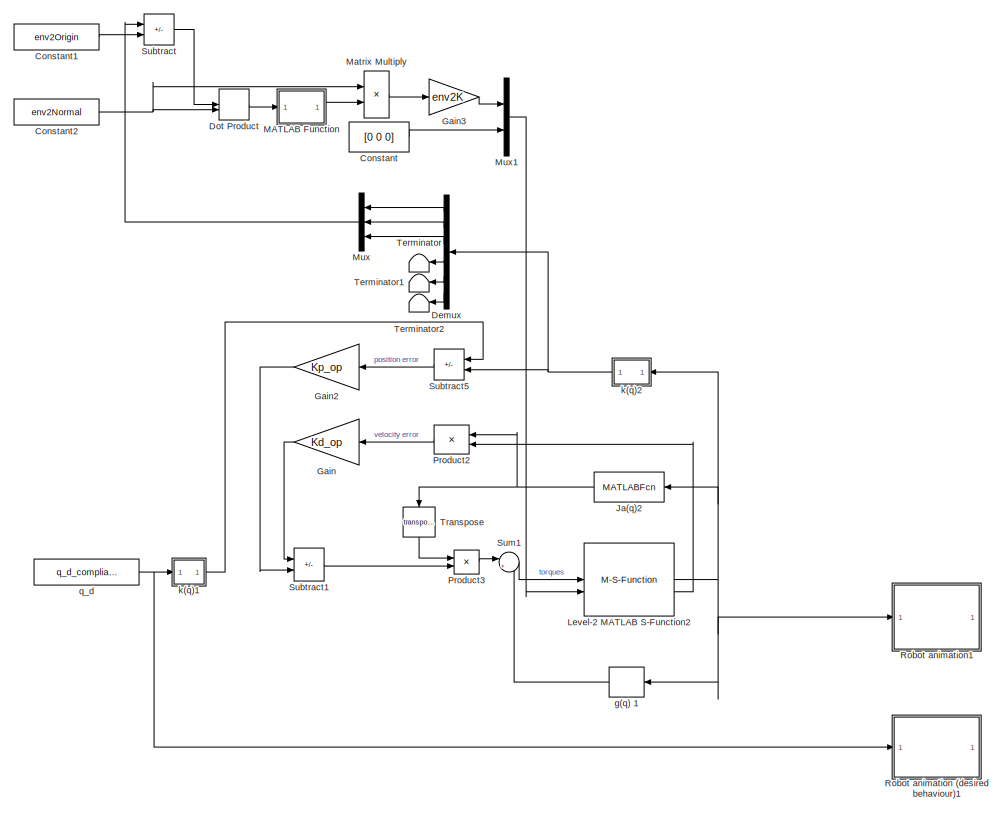
[diagram: root canvas - part 1/4, top center region]
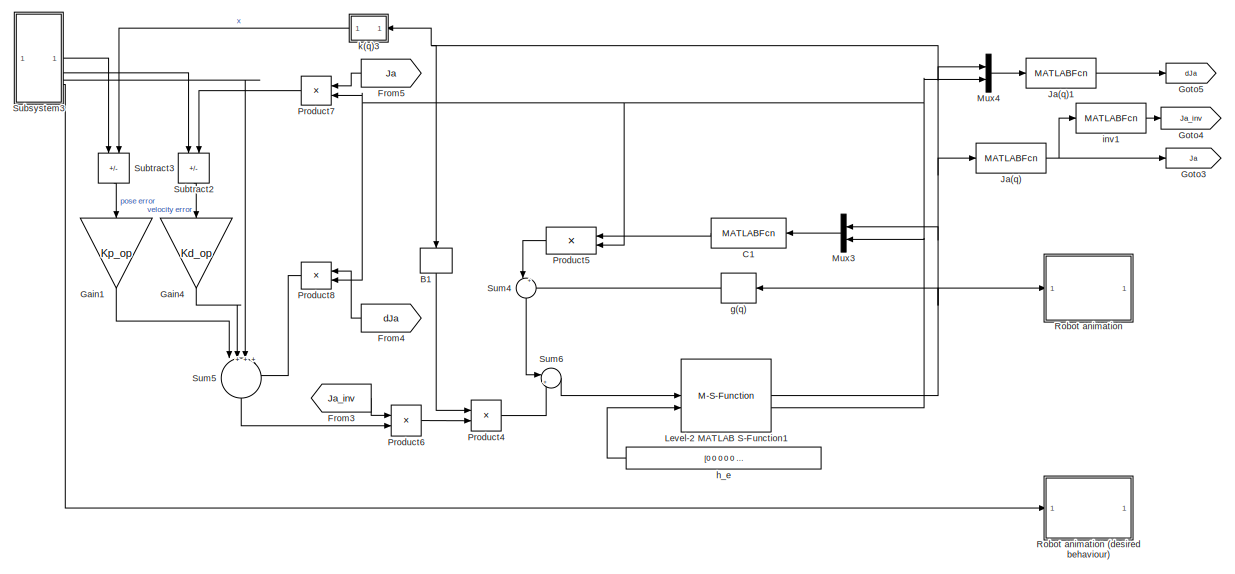
[diagram: root canvas - part 2/4, central region]
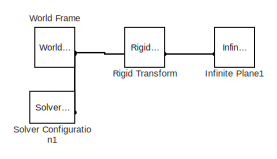
[diagram: root canvas - part 3/4, middle right region]
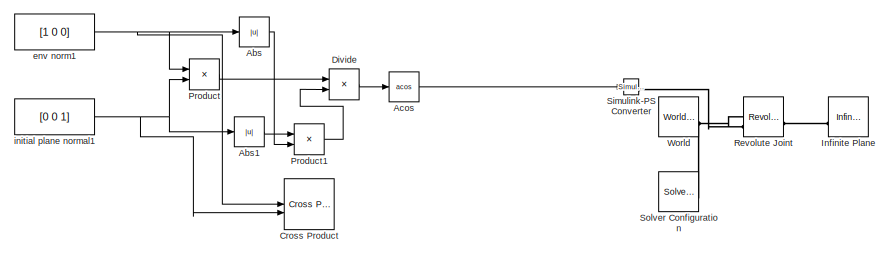
[diagram: root canvas - part 4/4, bottom center region]
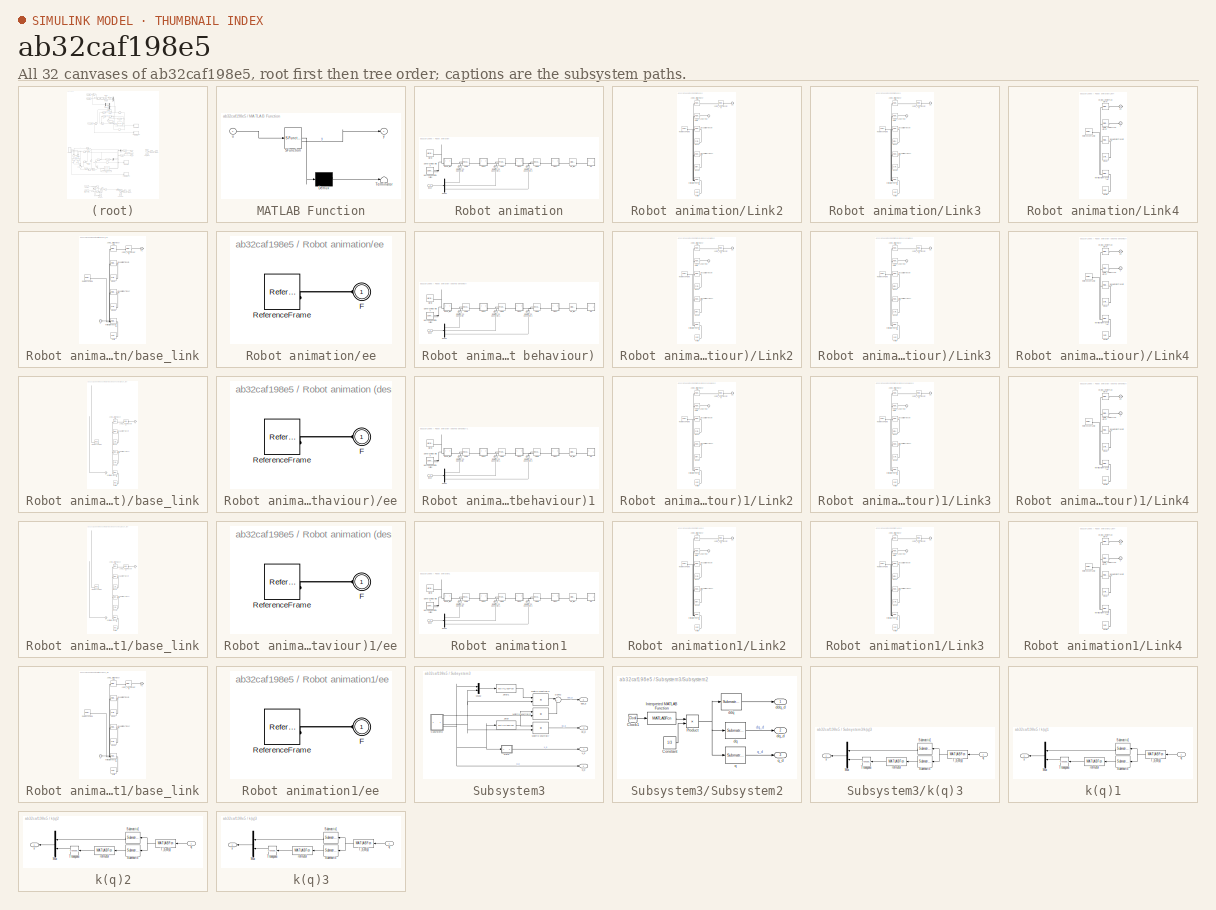
[diagram: thumbnail index - all 32 canvases of the model, root first then tree order]
MODEL slx_ab32caf198e5
KIND model
CONFIG AbsTol = auto
CONFIG EnableMultiTasking = off
CONFIG FixedStep = 0.001
CONFIG MaxStep = auto
CONFIG MinStep = 1e-4
CONFIG RelTol = 1e-3
CONFIG SampleTimeConstraint = Unconstrained
CONFIG SolverName = VariableStepAuto
CONFIG StartTime = 0.0
CONFIG StopTime = 5
BLOCK [Abs] Abs
  Commented = on
  SaturateOnIntegerOverflow = off
BLOCK [Abs] Abs1
  Commented = on
  SaturateOnIntegerOverflow = off
BLOCK [Trigonometry] Acos
  Commented = on
  Operator = acos
BLOCK [MATLABFcn] B1
  Commented = on
  MATLABFcn = myRobot.func.B(u(1), u(2), u(3))
  NameLocation = right
  Output1D = off
  OutputDimensions = [3 3]
  OutputSignalType = real
BLOCK [MATLABFcn] C1
  Commented = on
  MATLABFcn = myRobot.func.C(u(1), u(2), u(3), u(4), u(5), u(6))
  Output1D = off
  OutputDimensions = [3 3]
BLOCK [Constant] Constant
  Value = [0 0 0]
BLOCK [Constant] Constant1
  Value = env2Origin
BLOCK [Constant] Constant2
  Value = env2Normal
BLOCK [Reference] Cross Product  REF=matrix_library/Cross Product
  Commented = on
  LibrarySourceBlock = simulink/Matrix\nOperations/Cross Product
  SourceBlock = matrix_library/Cross Product
  SourceType = CrossProduct
BLOCK [Demux] Demux
  NameLocation = top
  Outputs = 6
BLOCK [Product] Divide
  Commented = on
  Inputs = */
BLOCK [DotProduct] Dot Product
  OutDataTypeStr = Inherit: Inherit via internal rule
BLOCK [From] From3
  Commented = on
  GotoTag = Ja_inv
BLOCK [From] From4
  Commented = on
  GotoTag = dJa
  NameLocation = top
BLOCK [From] From5
  Commented = on
  GotoTag = Ja
  NameLocation = top
BLOCK [Gain] Gain
  Gain = Kd_op
  Multiplication = Matrix(K*u)
  NameLocation = top
BLOCK [Gain] Gain1
  Commented = on
  Gain = Kp_op
  Multiplication = Matrix(K*u)
  NameLocation = left
BLOCK [Gain] Gain2
  Gain = Kp_op
  Multiplication = Matrix(K*u)
  NameLocation = top
BLOCK [Gain] Gain3
  Gain = env2K
BLOCK [Gain] Gain4
  Commented = on
  Gain = Kd_op
  Multiplication = Matrix(K*u)
  NameLocation = left
BLOCK [Goto] Goto3
  Commented = on
  GotoTag = Ja
BLOCK [Goto] Goto4
  Commented = on
  GotoTag = Ja_inv
BLOCK [Goto] Goto5
  Commented = on
  GotoTag = dJa
BLOCK [Reference] Infinite Plane  REF=sm_lib/Curves and Surfaces/Infinite Plane
  Commented = on
  SourceBlock = sm_lib/Curves and Surfaces/Infinite Plane
  SourceType = Infinite Plane
BLOCK [Reference] Infinite Plane1  REF=sm_lib/Curves and Surfaces/Infinite Plane
  Commented = on
  SourceBlock = sm_lib/Curves and Surfaces/Infinite Plane
  SourceType = Infinite Plane
BLOCK [MATLABFcn] Ja(q)
  Commented = on
  MATLABFcn = myRobot.func.Ja(u(1),u(2),u(3))
  Output1D = off
BLOCK [MATLABFcn] Ja(q)1
  Commented = on
  MATLABFcn = myRobot.func.dJa(u(1),u(2),u(3),u(4),u(5),u(6))
  Output1D = off
BLOCK [MATLABFcn] Ja(q)2
  MATLABFcn = myRobot.func.Ja(u(1),u(2),u(3))
  NameLocation = top
  Output1D = off
BLOCK [M-S-Function] Level-2 MATLAB S-Function1
  Commented = on
  FunctionName = robot_s_function
  Parameters = myRobot,q_i,dq_i
BLOCK [M-S-Function] Level-2 MATLAB S-Function2
  FunctionName = robot_s_function
  Parameters = myRobot,q_i_up,dq_i
BLOCK [SubSystem] MATLAB Function
  ErrorFcn = Stateflow.Translate.translate
  PermitHierarchicalResolution = ExplicitOnly
  SFBlockType = MATLAB Function
  TreatAsAtomicUnit = on
BLOCK [Demux] MATLAB Function/ Demux 
  Outputs = 1
BLOCK [S-Function] MATLAB Function/ SFunction 
  EnableBusSupport = on
  FunctionName = sf_sfun
  PortCounts = [1 2]
  SFcnIsStateOwnerBlock = off
  SFunctionDeploymentMode = off
  Tag = Stateflow S-Function 2
BLOCK [Terminator] MATLAB Function/ Terminator 
BLOCK [Inport] MATLAB Function/u
BLOCK [Outport] MATLAB Function/y
BLOCK [Product] Matrix Multiply
BLOCK [Mux] Mux
  DisplayOption = bar
  Inputs = 3
  NameLocation = top
BLOCK [Mux] Mux1
  DisplayOption = bar
  Inputs = 2
BLOCK [Mux] Mux3
  Commented = on
  DisplayOption = bar
  Inputs = 2
  NameLocation = top
BLOCK [Mux] Mux4
  Commented = on
  DisplayOption = bar
  Inputs = 2
BLOCK [Product] Product
  Commented = on
  Multiplication = Matrix(*)
BLOCK [Product] Product1
  Commented = on
  Multiplication = Matrix(*)
BLOCK [Product] Product2
  Multiplication = Matrix(*)
  NameLocation = top
BLOCK [Product] Product3
  Multiplication = Matrix(*)
BLOCK [Product] Product4
  Commented = on
  Multiplication = Matrix(*)
BLOCK [Product] Product5
  Commented = on
  Multiplication = Matrix(*)
  NameLocation = top
BLOCK [Product] Product6
  Commented = on
  Multiplication = Matrix(*)
BLOCK [Product] Product7
  Commented = on
  Multiplication = Matrix(*)
  NameLocation = top
BLOCK [Product] Product8
  Commented = on
  Multiplication = Matrix(*)
  NameLocation = top
BLOCK [Reference] Revolute Joint  REF=sm_lib/Joints/Revolute Joint
  Commented = on
  SourceBlock = sm_lib/Joints/Revolute Joint
  SourceType = Revolute Joint
BLOCK [Reference] Rigid Transform  REF=sm_lib/Frames and
Transforms/Rigid
Transform
  Commented = on
  SourceBlock = sm_lib/Frames and\nTransforms/Rigid\nTransform
  SourceType = Rigid\nTransform
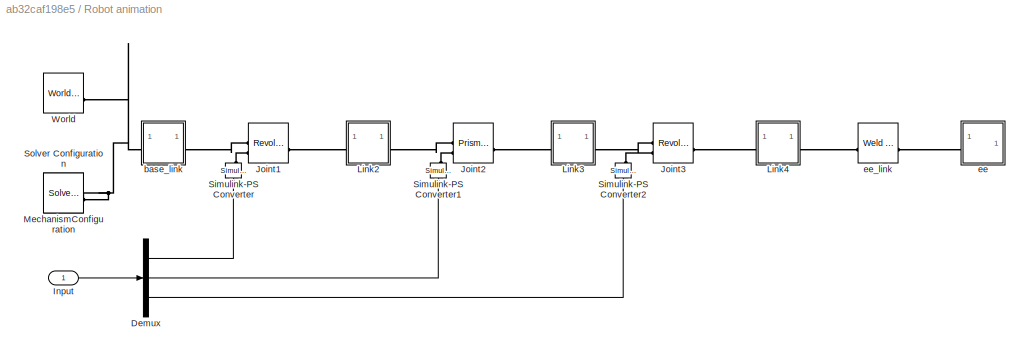
BLOCK [SubSystem] Robot animation
  Commented = on
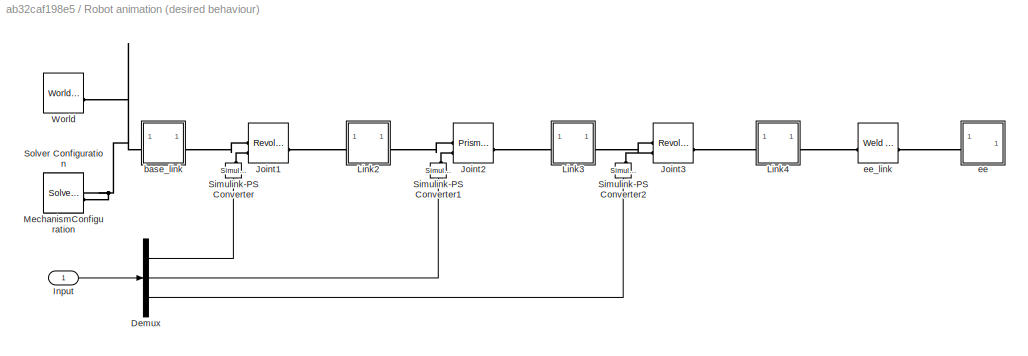
BLOCK [SubSystem] Robot animation (desired behaviour)
  Commented = on
BLOCK [Demux] Robot animation (desired behaviour)/Demux
  Outputs = 3
BLOCK [Inport] Robot animation (desired behaviour)/Input
BLOCK [Reference] Robot animation (desired behaviour)/Joint1  REF=sm_lib/Joints/Revolute Joint
  SourceBlock = sm_lib/Joints/Revolute Joint
  SourceType = Revolute Joint
BLOCK [Reference] Robot animation (desired behaviour)/Joint2  REF=sm_lib/Joints/Prismatic
Joint
  SourceBlock = sm_lib/Joints/Prismatic\nJoint
  SourceType = Prismatic\nJoint
BLOCK [Reference] Robot animation (desired behaviour)/Joint3  REF=sm_lib/Joints/Revolute Joint
  SourceBlock = sm_lib/Joints/Revolute Joint
  SourceType = Revolute Joint
BLOCK [SubSystem] Robot animation (desired behaviour)/Link2
BLOCK [PMIOPort] Robot animation (desired behaviour)/Link2/F
  Side = Left
BLOCK [PMIOPort] Robot animation (desired behaviour)/Link2/F1
  Port = 2
  Side = Right
BLOCK [Reference] Robot animation (desired behaviour)/Link2/Inertia  REF=sm_lib/Body Elements/Inertia
  SourceBlock = sm_lib/Body Elements/Inertia
  SourceType = Inertia
BLOCK [Reference] Robot animation (desired behaviour)/Link2/InertiaOriginTransform  REF=sm_lib/Frames and
Transforms/Rigid
Transform
  SourceBlock = sm_lib/Frames and\nTransforms/Rigid\nTransform
  SourceType = Rigid\nTransform
BLOCK [Reference] Robot animation (desired behaviour)/Link2/Joint1_AxisInvTransform  REF=sm_lib/Frames and
Transforms/Rigid
Transform
  SourceBlock = sm_lib/Frames and\nTransforms/Rigid\nTransform
  SourceType = Rigid\nTransform
BLOCK [Reference] Robot animation (desired behaviour)/Link2/Joint2_AxisTransform  REF=sm_lib/Frames and
Transforms/Rigid
Transform
  SourceBlock = sm_lib/Frames and\nTransforms/Rigid\nTransform
  SourceType = Rigid\nTransform
BLOCK [Reference] Robot animation (desired behaviour)/Link2/Joint2_OriginTransform  REF=sm_lib/Frames and
Transforms/Rigid
Transform
  SourceBlock = sm_lib/Frames and\nTransforms/Rigid\nTransform
  SourceType = Rigid\nTransform
BLOCK [Reference] Robot animation (desired behaviour)/Link2/ReferenceFrame  REF=sm_lib/Frames and
Transforms/Reference
Frame
  SourceBlock = sm_lib/Frames and\nTransforms/Reference\nFrame
  SourceType = Reference\nFrame
BLOCK [Reference] Robot animation (desired behaviour)/Link2/Visual  REF=sm_lib/Body Elements/Cylindrical Solid
  SourceBlock = sm_lib/Body Elements/Cylindrical Solid
  SourceType = Cylindrical Solid
BLOCK [Reference] Robot animation (desired behaviour)/Link2/Visual1  REF=sm_lib/Body Elements/Brick Solid
  SourceBlock = sm_lib/Body Elements/Brick Solid
  SourceType = Brick Solid
BLOCK [Reference] Robot animation (desired behaviour)/Link2/VisualOrigin1Transform  REF=sm_lib/Frames and
Transforms/Rigid
Transform
  SourceBlock = sm_lib/Frames and\nTransforms/Rigid\nTransform
  SourceType = Rigid\nTransform
BLOCK [Reference] Robot animation (desired behaviour)/Link2/VisualOriginTransform  REF=sm_lib/Frames and
Transforms/Rigid
Transform
  SourceBlock = sm_lib/Frames and\nTransforms/Rigid\nTransform
  SourceType = Rigid\nTransform
BLOCK [SubSystem] Robot animation (desired behaviour)/Link3
BLOCK [PMIOPort] Robot animation (desired behaviour)/Link3/F
  Side = Left
BLOCK [PMIOPort] Robot animation (desired behaviour)/Link3/F1
  Port = 2
  Side = Right
BLOCK [Reference] Robot animation (desired behaviour)/Link3/Inertia  REF=sm_lib/Body Elements/Inertia
  SourceBlock = sm_lib/Body Elements/Inertia
  SourceType = Inertia
BLOCK [Reference] Robot animation (desired behaviour)/Link3/InertiaOriginTransform  REF=sm_lib/Frames and
Transforms/Rigid
Transform
  SourceBlock = sm_lib/Frames and\nTransforms/Rigid\nTransform
  SourceType = Rigid\nTransform
BLOCK [Reference] Robot animation (desired behaviour)/Link3/Joint2_AxisInvTransform  REF=sm_lib/Frames and
Transforms/Rigid
Transform
  SourceBlock = sm_lib/Frames and\nTransforms/Rigid\nTransform
  SourceType = Rigid\nTransform
BLOCK [Reference] Robot animation (desired behaviour)/Link3/Joint3_AxisTransform  REF=sm_lib/Frames and
Transforms/Rigid
Transform
  SourceBlock = sm_lib/Frames and\nTransforms/Rigid\nTransform
  SourceType = Rigid\nTransform
BLOCK [Reference] Robot animation (desired behaviour)/Link3/Joint3_OriginTransform  REF=sm_lib/Frames and
Transforms/Rigid
Transform
  SourceBlock = sm_lib/Frames and\nTransforms/Rigid\nTransform
  SourceType = Rigid\nTransform
BLOCK [Reference] Robot animation (desired behaviour)/Link3/ReferenceFrame  REF=sm_lib/Frames and
Transforms/Reference
Frame
  SourceBlock = sm_lib/Frames and\nTransforms/Reference\nFrame
  SourceType = Reference\nFrame
BLOCK [Reference] Robot animation (desired behaviour)/Link3/Visual  REF=sm_lib/Body Elements/Brick Solid
  SourceBlock = sm_lib/Body Elements/Brick Solid
  SourceType = Brick Solid
BLOCK [Reference] Robot animation (desired behaviour)/Link3/Visual1  REF=sm_lib/Body Elements/Cylindrical Solid
  SourceBlock = sm_lib/Body Elements/Cylindrical Solid
  SourceType = Cylindrical Solid
BLOCK [Reference] Robot animation (desired behaviour)/Link3/VisualOrigin1Transform  REF=sm_lib/Frames and
Transforms/Rigid
Transform
  SourceBlock = sm_lib/Frames and\nTransforms/Rigid\nTransform
  SourceType = Rigid\nTransform
BLOCK [Reference] Robot animation (desired behaviour)/Link3/VisualOriginTransform  REF=sm_lib/Frames and
Transforms/Rigid
Transform
  SourceBlock = sm_lib/Frames and\nTransforms/Rigid\nTransform
  SourceType = Rigid\nTransform
BLOCK [SubSystem] Robot animation (desired behaviour)/Link4
BLOCK [PMIOPort] Robot animation (desired behaviour)/Link4/F
  Side = Left
BLOCK [PMIOPort] Robot animation (desired behaviour)/Link4/F1
  Port = 2
  Side = Right
BLOCK [Reference] Robot animation (desired behaviour)/Link4/Inertia  REF=sm_lib/Body Elements/Inertia
  SourceBlock = sm_lib/Body Elements/Inertia
  SourceType = Inertia
BLOCK [Reference] Robot animation (desired behaviour)/Link4/InertiaOriginTransform  REF=sm_lib/Frames and
Transforms/Rigid
Transform
  SourceBlock = sm_lib/Frames and\nTransforms/Rigid\nTransform
  SourceType = Rigid\nTransform
BLOCK [Reference] Robot animation (desired behaviour)/Link4/Joint3_AxisInvTransform  REF=sm_lib/Frames and
Transforms/Rigid
Transform
  SourceBlock = sm_lib/Frames and\nTransforms/Rigid\nTransform
  SourceType = Rigid\nTransform
BLOCK [Reference] Robot animation (desired behaviour)/Link4/ReferenceFrame  REF=sm_lib/Frames and
Transforms/Reference
Frame
  SourceBlock = sm_lib/Frames and\nTransforms/Reference\nFrame
  SourceType = Reference\nFrame
BLOCK [Reference] Robot animation (desired behaviour)/Link4/Visual  REF=sm_lib/Body Elements/Cylindrical Solid
  SourceBlock = sm_lib/Body Elements/Cylindrical Solid
  SourceType = Cylindrical Solid
BLOCK [Reference] Robot animation (desired behaviour)/Link4/VisualOriginTransform  REF=sm_lib/Frames and
Transforms/Rigid
Transform
  SourceBlock = sm_lib/Frames and\nTransforms/Rigid\nTransform
  SourceType = Rigid\nTransform
BLOCK [Reference] Robot animation (desired behaviour)/Link4/ee_link_OriginTransform  REF=sm_lib/Frames and
Transforms/Rigid
Transform
  SourceBlock = sm_lib/Frames and\nTransforms/Rigid\nTransform
  SourceType = Rigid\nTransform
BLOCK [Reference] Robot animation (desired behaviour)/MechanismConfiguration  REF=sm_lib/Utilities/Mechanism
Configuration
  SourceBlock = sm_lib/Utilities/Mechanism\nConfiguration
  SourceType = Mechanism\nConfiguration
BLOCK [Reference] Robot animation (desired behaviour)/Simulink-PS Converter  REF=nesl_utility/Simulink-PS
Converter
  NameLocation = right
  SourceBlock = nesl_utility/Simulink-PS\nConverter
  SourceType = Simulink-PS\nConverter
BLOCK [Reference] Robot animation (desired behaviour)/Simulink-PS Converter1  REF=nesl_utility/Simulink-PS
Converter
  NameLocation = right
  SourceBlock = nesl_utility/Simulink-PS\nConverter
  SourceType = Simulink-PS\nConverter
BLOCK [Reference] Robot animation (desired behaviour)/Simulink-PS Converter2  REF=nesl_utility/Simulink-PS
Converter
  NameLocation = right
  SourceBlock = nesl_utility/Simulink-PS\nConverter
  SourceType = Simulink-PS\nConverter
BLOCK [Reference] Robot animation (desired behaviour)/Solver Configuration  REF=nesl_utility/Solver
Configuration
  SourceBlock = nesl_utility/Solver\nConfiguration
  SourceType = Solver\nConfiguration
BLOCK [Reference] Robot animation (desired behaviour)/World  REF=sm_lib/Frames and
Transforms/World Frame
  SourceBlock = sm_lib/Frames and\nTransforms/World Frame
  SourceType = World Frame
BLOCK [SubSystem] Robot animation (desired behaviour)/base_link
BLOCK [PMIOPort] Robot animation (desired behaviour)/base_link/F
  Side = Left
BLOCK [PMIOPort] Robot animation (desired behaviour)/base_link/F1
  Port = 2
  Side = Right
BLOCK [Reference] Robot animation (desired behaviour)/base_link/Inertia  REF=sm_lib/Body Elements/Inertia
  SourceBlock = sm_lib/Body Elements/Inertia
  SourceType = Inertia
BLOCK [Reference] Robot animation (desired behaviour)/base_link/InertiaOriginTransform  REF=sm_lib/Frames and
Transforms/Rigid
Transform
  SourceBlock = sm_lib/Frames and\nTransforms/Rigid\nTransform
  SourceType = Rigid\nTransform
BLOCK [Reference] Robot animation (desired behaviour)/base_link/Joint1_AxisTransform  REF=sm_lib/Frames and
Transforms/Rigid
Transform
  SourceBlock = sm_lib/Frames and\nTransforms/Rigid\nTransform
  SourceType = Rigid\nTransform
BLOCK [Reference] Robot animation (desired behaviour)/base_link/Joint1_OriginTransform  REF=sm_lib/Frames and
Transforms/Rigid
Transform
  SourceBlock = sm_lib/Frames and\nTransforms/Rigid\nTransform
  SourceType = Rigid\nTransform
BLOCK [Reference] Robot animation (desired behaviour)/base_link/ReferenceFrame  REF=sm_lib/Frames and
Transforms/Reference
Frame
  SourceBlock = sm_lib/Frames and\nTransforms/Reference\nFrame
  SourceType = Reference\nFrame
BLOCK [Reference] Robot animation (desired behaviour)/base_link/Visual  REF=sm_lib/Body Elements/Cylindrical Solid
  SourceBlock = sm_lib/Body Elements/Cylindrical Solid
  SourceType = Cylindrical Solid
BLOCK [Reference] Robot animation (desired behaviour)/base_link/Visual1  REF=sm_lib/Body Elements/Cylindrical Solid
  SourceBlock = sm_lib/Body Elements/Cylindrical Solid
  SourceType = Cylindrical Solid
BLOCK [Reference] Robot animation (desired behaviour)/base_link/VisualOrigin1Transform  REF=sm_lib/Frames and
Transforms/Rigid
Transform
  SourceBlock = sm_lib/Frames and\nTransforms/Rigid\nTransform
  SourceType = Rigid\nTransform
BLOCK [Reference] Robot animation (desired behaviour)/base_link/VisualOriginTransform  REF=sm_lib/Frames and
Transforms/Rigid
Transform
  SourceBlock = sm_lib/Frames and\nTransforms/Rigid\nTransform
  SourceType = Rigid\nTransform
BLOCK [SubSystem] Robot animation (desired behaviour)/ee
BLOCK [PMIOPort] Robot animation (desired behaviour)/ee/F
  Side = Left
BLOCK [Reference] Robot animation (desired behaviour)/ee/ReferenceFrame  REF=sm_lib/Frames and
Transforms/Reference
Frame
  SourceBlock = sm_lib/Frames and\nTransforms/Reference\nFrame
  SourceType = Reference\nFrame
BLOCK [Reference] Robot animation (desired behaviour)/ee_link  REF=sm_lib/Joints/Weld Joint
  SourceBlock = sm_lib/Joints/Weld Joint
  SourceType = Weld Joint
BLOCK [SubSystem] Robot animation (desired behaviour)1
BLOCK [Demux] Robot animation (desired behaviour)1/Demux
  Outputs = 3
BLOCK [Inport] Robot animation (desired behaviour)1/Input
BLOCK [Reference] Robot animation (desired behaviour)1/Joint1  REF=sm_lib/Joints/Revolute Joint
  SourceBlock = sm_lib/Joints/Revolute Joint
  SourceType = Revolute Joint
BLOCK [Reference] Robot animation (desired behaviour)1/Joint2  REF=sm_lib/Joints/Prismatic
Joint
  SourceBlock = sm_lib/Joints/Prismatic\nJoint
  SourceType = Prismatic\nJoint
BLOCK [Reference] Robot animation (desired behaviour)1/Joint3  REF=sm_lib/Joints/Revolute Joint
  SourceBlock = sm_lib/Joints/Revolute Joint
  SourceType = Revolute Joint
BLOCK [SubSystem] Robot animation (desired behaviour)1/Link2
BLOCK [PMIOPort] Robot animation (desired behaviour)1/Link2/F
  Side = Left
BLOCK [PMIOPort] Robot animation (desired behaviour)1/Link2/F1
  Port = 2
  Side = Right
BLOCK [Reference] Robot animation (desired behaviour)1/Link2/Inertia  REF=sm_lib/Body Elements/Inertia
  SourceBlock = sm_lib/Body Elements/Inertia
  SourceType = Inertia
BLOCK [Reference] Robot animation (desired behaviour)1/Link2/InertiaOriginTransform  REF=sm_lib/Frames and
Transforms/Rigid
Transform
  SourceBlock = sm_lib/Frames and\nTransforms/Rigid\nTransform
  SourceType = Rigid\nTransform
BLOCK [Reference] Robot animation (desired behaviour)1/Link2/Joint1_AxisInvTransform  REF=sm_lib/Frames and
Transforms/Rigid
Transform
  SourceBlock = sm_lib/Frames and\nTransforms/Rigid\nTransform
  SourceType = Rigid\nTransform
BLOCK [Reference] Robot animation (desired behaviour)1/Link2/Joint2_AxisTransform  REF=sm_lib/Frames and
Transforms/Rigid
Transform
  SourceBlock = sm_lib/Frames and\nTransforms/Rigid\nTransform
  SourceType = Rigid\nTransform
BLOCK [Reference] Robot animation (desired behaviour)1/Link2/Joint2_OriginTransform  REF=sm_lib/Frames and
Transforms/Rigid
Transform
  SourceBlock = sm_lib/Frames and\nTransforms/Rigid\nTransform
  SourceType = Rigid\nTransform
BLOCK [Reference] Robot animation (desired behaviour)1/Link2/ReferenceFrame  REF=sm_lib/Frames and
Transforms/Reference
Frame
  SourceBlock = sm_lib/Frames and\nTransforms/Reference\nFrame
  SourceType = Reference\nFrame
BLOCK [Reference] Robot animation (desired behaviour)1/Link2/Visual  REF=sm_lib/Body Elements/Cylindrical Solid
  SourceBlock = sm_lib/Body Elements/Cylindrical Solid
  SourceType = Cylindrical Solid
BLOCK [Reference] Robot animation (desired behaviour)1/Link2/Visual1  REF=sm_lib/Body Elements/Brick Solid
  SourceBlock = sm_lib/Body Elements/Brick Solid
  SourceType = Brick Solid
BLOCK [Reference] Robot animation (desired behaviour)1/Link2/VisualOrigin1Transform  REF=sm_lib/Frames and
Transforms/Rigid
Transform
  SourceBlock = sm_lib/Frames and\nTransforms/Rigid\nTransform
  SourceType = Rigid\nTransform
BLOCK [Reference] Robot animation (desired behaviour)1/Link2/VisualOriginTransform  REF=sm_lib/Frames and
Transforms/Rigid
Transform
  SourceBlock = sm_lib/Frames and\nTransforms/Rigid\nTransform
  SourceType = Rigid\nTransform
BLOCK [SubSystem] Robot animation (desired behaviour)1/Link3
BLOCK [PMIOPort] Robot animation (desired behaviour)1/Link3/F
  Side = Left
BLOCK [PMIOPort] Robot animation (desired behaviour)1/Link3/F1
  Port = 2
  Side = Right
BLOCK [Reference] Robot animation (desired behaviour)1/Link3/Inertia  REF=sm_lib/Body Elements/Inertia
  SourceBlock = sm_lib/Body Elements/Inertia
  SourceType = Inertia
BLOCK [Reference] Robot animation (desired behaviour)1/Link3/InertiaOriginTransform  REF=sm_lib/Frames and
Transforms/Rigid
Transform
  SourceBlock = sm_lib/Frames and\nTransforms/Rigid\nTransform
  SourceType = Rigid\nTransform
BLOCK [Reference] Robot animation (desired behaviour)1/Link3/Joint2_AxisInvTransform  REF=sm_lib/Frames and
Transforms/Rigid
Transform
  SourceBlock = sm_lib/Frames and\nTransforms/Rigid\nTransform
  SourceType = Rigid\nTransform
BLOCK [Reference] Robot animation (desired behaviour)1/Link3/Joint3_AxisTransform  REF=sm_lib/Frames and
Transforms/Rigid
Transform
  SourceBlock = sm_lib/Frames and\nTransforms/Rigid\nTransform
  SourceType = Rigid\nTransform
BLOCK [Reference] Robot animation (desired behaviour)1/Link3/Joint3_OriginTransform  REF=sm_lib/Frames and
Transforms/Rigid
Transform
  SourceBlock = sm_lib/Frames and\nTransforms/Rigid\nTransform
  SourceType = Rigid\nTransform
BLOCK [Reference] Robot animation (desired behaviour)1/Link3/ReferenceFrame  REF=sm_lib/Frames and
Transforms/Reference
Frame
  SourceBlock = sm_lib/Frames and\nTransforms/Reference\nFrame
  SourceType = Reference\nFrame
BLOCK [Reference] Robot animation (desired behaviour)1/Link3/Visual  REF=sm_lib/Body Elements/Brick Solid
  SourceBlock = sm_lib/Body Elements/Brick Solid
  SourceType = Brick Solid
BLOCK [Reference] Robot animation (desired behaviour)1/Link3/Visual1  REF=sm_lib/Body Elements/Cylindrical Solid
  SourceBlock = sm_lib/Body Elements/Cylindrical Solid
  SourceType = Cylindrical Solid
BLOCK [Reference] Robot animation (desired behaviour)1/Link3/VisualOrigin1Transform  REF=sm_lib/Frames and
Transforms/Rigid
Transform
  SourceBlock = sm_lib/Frames and\nTransforms/Rigid\nTransform
  SourceType = Rigid\nTransform
BLOCK [Reference] Robot animation (desired behaviour)1/Link3/VisualOriginTransform  REF=sm_lib/Frames and
Transforms/Rigid
Transform
  SourceBlock = sm_lib/Frames and\nTransforms/Rigid\nTransform
  SourceType = Rigid\nTransform
BLOCK [SubSystem] Robot animation (desired behaviour)1/Link4
BLOCK [PMIOPort] Robot animation (desired behaviour)1/Link4/F
  Side = Left
BLOCK [PMIOPort] Robot animation (desired behaviour)1/Link4/F1
  Port = 2
  Side = Right
BLOCK [Reference] Robot animation (desired behaviour)1/Link4/Inertia  REF=sm_lib/Body Elements/Inertia
  SourceBlock = sm_lib/Body Elements/Inertia
  SourceType = Inertia
BLOCK [Reference] Robot animation (desired behaviour)1/Link4/InertiaOriginTransform  REF=sm_lib/Frames and
Transforms/Rigid
Transform
  SourceBlock = sm_lib/Frames and\nTransforms/Rigid\nTransform
  SourceType = Rigid\nTransform
BLOCK [Reference] Robot animation (desired behaviour)1/Link4/Joint3_AxisInvTransform  REF=sm_lib/Frames and
Transforms/Rigid
Transform
  SourceBlock = sm_lib/Frames and\nTransforms/Rigid\nTransform
  SourceType = Rigid\nTransform
BLOCK [Reference] Robot animation (desired behaviour)1/Link4/ReferenceFrame  REF=sm_lib/Frames and
Transforms/Reference
Frame
  SourceBlock = sm_lib/Frames and\nTransforms/Reference\nFrame
  SourceType = Reference\nFrame
BLOCK [Reference] Robot animation (desired behaviour)1/Link4/Visual  REF=sm_lib/Body Elements/Cylindrical Solid
  SourceBlock = sm_lib/Body Elements/Cylindrical Solid
  SourceType = Cylindrical Solid
BLOCK [Reference] Robot animation (desired behaviour)1/Link4/VisualOriginTransform  REF=sm_lib/Frames and
Transforms/Rigid
Transform
  SourceBlock = sm_lib/Frames and\nTransforms/Rigid\nTransform
  SourceType = Rigid\nTransform
BLOCK [Reference] Robot animation (desired behaviour)1/Link4/ee_link_OriginTransform  REF=sm_lib/Frames and
Transforms/Rigid
Transform
  SourceBlock = sm_lib/Frames and\nTransforms/Rigid\nTransform
  SourceType = Rigid\nTransform
BLOCK [Reference] Robot animation (desired behaviour)1/MechanismConfiguration  REF=sm_lib/Utilities/Mechanism
Configuration
  SourceBlock = sm_lib/Utilities/Mechanism\nConfiguration
  SourceType = Mechanism\nConfiguration
BLOCK [Reference] Robot animation (desired behaviour)1/Simulink-PS Converter  REF=nesl_utility/Simulink-PS
Converter
  NameLocation = right
  SourceBlock = nesl_utility/Simulink-PS\nConverter
  SourceType = Simulink-PS\nConverter
BLOCK [Reference] Robot animation (desired behaviour)1/Simulink-PS Converter1  REF=nesl_utility/Simulink-PS
Converter
  NameLocation = right
  SourceBlock = nesl_utility/Simulink-PS\nConverter
  SourceType = Simulink-PS\nConverter
BLOCK [Reference] Robot animation (desired behaviour)1/Simulink-PS Converter2  REF=nesl_utility/Simulink-PS
Converter
  NameLocation = right
  SourceBlock = nesl_utility/Simulink-PS\nConverter
  SourceType = Simulink-PS\nConverter
BLOCK [Reference] Robot animation (desired behaviour)1/Solver Configuration  REF=nesl_utility/Solver
Configuration
  SourceBlock = nesl_utility/Solver\nConfiguration
  SourceType = Solver\nConfiguration
BLOCK [Reference] Robot animation (desired behaviour)1/World  REF=sm_lib/Frames and
Transforms/World Frame
  SourceBlock = sm_lib/Frames and\nTransforms/World Frame
  SourceType = World Frame
BLOCK [SubSystem] Robot animation (desired behaviour)1/base_link
BLOCK [PMIOPort] Robot animation (desired behaviour)1/base_link/F
  Side = Left
BLOCK [PMIOPort] Robot animation (desired behaviour)1/base_link/F1
  Port = 2
  Side = Right
BLOCK [Reference] Robot animation (desired behaviour)1/base_link/Inertia  REF=sm_lib/Body Elements/Inertia
  SourceBlock = sm_lib/Body Elements/Inertia
  SourceType = Inertia
BLOCK [Reference] Robot animation (desired behaviour)1/base_link/InertiaOriginTransform  REF=sm_lib/Frames and
Transforms/Rigid
Transform
  SourceBlock = sm_lib/Frames and\nTransforms/Rigid\nTransform
  SourceType = Rigid\nTransform
BLOCK [Reference] Robot animation (desired behaviour)1/base_link/Joint1_AxisTransform  REF=sm_lib/Frames and
Transforms/Rigid
Transform
  SourceBlock = sm_lib/Frames and\nTransforms/Rigid\nTransform
  SourceType = Rigid\nTransform
BLOCK [Reference] Robot animation (desired behaviour)1/base_link/Joint1_OriginTransform  REF=sm_lib/Frames and
Transforms/Rigid
Transform
  SourceBlock = sm_lib/Frames and\nTransforms/Rigid\nTransform
  SourceType = Rigid\nTransform
BLOCK [Reference] Robot animation (desired behaviour)1/base_link/ReferenceFrame  REF=sm_lib/Frames and
Transforms/Reference
Frame
  SourceBlock = sm_lib/Frames and\nTransforms/Reference\nFrame
  SourceType = Reference\nFrame
BLOCK [Reference] Robot animation (desired behaviour)1/base_link/Visual  REF=sm_lib/Body Elements/Cylindrical Solid
  SourceBlock = sm_lib/Body Elements/Cylindrical Solid
  SourceType = Cylindrical Solid
BLOCK [Reference] Robot animation (desired behaviour)1/base_link/Visual1  REF=sm_lib/Body Elements/Cylindrical Solid
  SourceBlock = sm_lib/Body Elements/Cylindrical Solid
  SourceType = Cylindrical Solid
BLOCK [Reference] Robot animation (desired behaviour)1/base_link/VisualOrigin1Transform  REF=sm_lib/Frames and
Transforms/Rigid
Transform
  SourceBlock = sm_lib/Frames and\nTransforms/Rigid\nTransform
  SourceType = Rigid\nTransform
BLOCK [Reference] Robot animation (desired behaviour)1/base_link/VisualOriginTransform  REF=sm_lib/Frames and
Transforms/Rigid
Transform
  SourceBlock = sm_lib/Frames and\nTransforms/Rigid\nTransform
  SourceType = Rigid\nTransform
BLOCK [SubSystem] Robot animation (desired behaviour)1/ee
BLOCK [PMIOPort] Robot animation (desired behaviour)1/ee/F
  Side = Left
BLOCK [Reference] Robot animation (desired behaviour)1/ee/ReferenceFrame  REF=sm_lib/Frames and
Transforms/Reference
Frame
  SourceBlock = sm_lib/Frames and\nTransforms/Reference\nFrame
  SourceType = Reference\nFrame
BLOCK [Reference] Robot animation (desired behaviour)1/ee_link  REF=sm_lib/Joints/Weld Joint
  SourceBlock = sm_lib/Joints/Weld Joint
  SourceType = Weld Joint
BLOCK [Demux] Robot animation/Demux
  Outputs = 3
BLOCK [Inport] Robot animation/Input
BLOCK [Reference] Robot animation/Joint1  REF=sm_lib/Joints/Revolute Joint
  SourceBlock = sm_lib/Joints/Revolute Joint
  SourceType = Revolute Joint
BLOCK [Reference] Robot animation/Joint2  REF=sm_lib/Joints/Prismatic
Joint
  SourceBlock = sm_lib/Joints/Prismatic\nJoint
  SourceType = Prismatic\nJoint
BLOCK [Reference] Robot animation/Joint3  REF=sm_lib/Joints/Revolute Joint
  SourceBlock = sm_lib/Joints/Revolute Joint
  SourceType = Revolute Joint
BLOCK [SubSystem] Robot animation/Link2
BLOCK [PMIOPort] Robot animation/Link2/F
  Side = Left
BLOCK [PMIOPort] Robot animation/Link2/F1
  Port = 2
  Side = Right
BLOCK [Reference] Robot animation/Link2/Inertia  REF=sm_lib/Body Elements/Inertia
  SourceBlock = sm_lib/Body Elements/Inertia
  SourceType = Inertia
BLOCK [Reference] Robot animation/Link2/InertiaOriginTransform  REF=sm_lib/Frames and
Transforms/Rigid
Transform
  SourceBlock = sm_lib/Frames and\nTransforms/Rigid\nTransform
  SourceType = Rigid\nTransform
BLOCK [Reference] Robot animation/Link2/Joint1_AxisInvTransform  REF=sm_lib/Frames and
Transforms/Rigid
Transform
  SourceBlock = sm_lib/Frames and\nTransforms/Rigid\nTransform
  SourceType = Rigid\nTransform
BLOCK [Reference] Robot animation/Link2/Joint2_AxisTransform  REF=sm_lib/Frames and
Transforms/Rigid
Transform
  SourceBlock = sm_lib/Frames and\nTransforms/Rigid\nTransform
  SourceType = Rigid\nTransform
BLOCK [Reference] Robot animation/Link2/Joint2_OriginTransform  REF=sm_lib/Frames and
Transforms/Rigid
Transform
  SourceBlock = sm_lib/Frames and\nTransforms/Rigid\nTransform
  SourceType = Rigid\nTransform
BLOCK [Reference] Robot animation/Link2/ReferenceFrame  REF=sm_lib/Frames and
Transforms/Reference
Frame
  SourceBlock = sm_lib/Frames and\nTransforms/Reference\nFrame
  SourceType = Reference\nFrame
BLOCK [Reference] Robot animation/Link2/Visual  REF=sm_lib/Body Elements/Cylindrical Solid
  SourceBlock = sm_lib/Body Elements/Cylindrical Solid
  SourceType = Cylindrical Solid
BLOCK [Reference] Robot animation/Link2/Visual1  REF=sm_lib/Body Elements/Brick Solid
  SourceBlock = sm_lib/Body Elements/Brick Solid
  SourceType = Brick Solid
BLOCK [Reference] Robot animation/Link2/VisualOrigin1Transform  REF=sm_lib/Frames and
Transforms/Rigid
Transform
  SourceBlock = sm_lib/Frames and\nTransforms/Rigid\nTransform
  SourceType = Rigid\nTransform
BLOCK [Reference] Robot animation/Link2/VisualOriginTransform  REF=sm_lib/Frames and
Transforms/Rigid
Transform
  SourceBlock = sm_lib/Frames and\nTransforms/Rigid\nTransform
  SourceType = Rigid\nTransform
BLOCK [SubSystem] Robot animation/Link3
BLOCK [PMIOPort] Robot animation/Link3/F
  Side = Left
BLOCK [PMIOPort] Robot animation/Link3/F1
  Port = 2
  Side = Right
BLOCK [Reference] Robot animation/Link3/Inertia  REF=sm_lib/Body Elements/Inertia
  SourceBlock = sm_lib/Body Elements/Inertia
  SourceType = Inertia
BLOCK [Reference] Robot animation/Link3/InertiaOriginTransform  REF=sm_lib/Frames and
Transforms/Rigid
Transform
  SourceBlock = sm_lib/Frames and\nTransforms/Rigid\nTransform
  SourceType = Rigid\nTransform
BLOCK [Reference] Robot animation/Link3/Joint2_AxisInvTransform  REF=sm_lib/Frames and
Transforms/Rigid
Transform
  SourceBlock = sm_lib/Frames and\nTransforms/Rigid\nTransform
  SourceType = Rigid\nTransform
BLOCK [Reference] Robot animation/Link3/Joint3_AxisTransform  REF=sm_lib/Frames and
Transforms/Rigid
Transform
  SourceBlock = sm_lib/Frames and\nTransforms/Rigid\nTransform
  SourceType = Rigid\nTransform
BLOCK [Reference] Robot animation/Link3/Joint3_OriginTransform  REF=sm_lib/Frames and
Transforms/Rigid
Transform
  SourceBlock = sm_lib/Frames and\nTransforms/Rigid\nTransform
  SourceType = Rigid\nTransform
BLOCK [Reference] Robot animation/Link3/ReferenceFrame  REF=sm_lib/Frames and
Transforms/Reference
Frame
  SourceBlock = sm_lib/Frames and\nTransforms/Reference\nFrame
  SourceType = Reference\nFrame
BLOCK [Reference] Robot animation/Link3/Visual  REF=sm_lib/Body Elements/Brick Solid
  SourceBlock = sm_lib/Body Elements/Brick Solid
  SourceType = Brick Solid
BLOCK [Reference] Robot animation/Link3/Visual1  REF=sm_lib/Body Elements/Cylindrical Solid
  SourceBlock = sm_lib/Body Elements/Cylindrical Solid
  SourceType = Cylindrical Solid
BLOCK [Reference] Robot animation/Link3/VisualOrigin1Transform  REF=sm_lib/Frames and
Transforms/Rigid
Transform
  SourceBlock = sm_lib/Frames and\nTransforms/Rigid\nTransform
  SourceType = Rigid\nTransform
BLOCK [Reference] Robot animation/Link3/VisualOriginTransform  REF=sm_lib/Frames and
Transforms/Rigid
Transform
  SourceBlock = sm_lib/Frames and\nTransforms/Rigid\nTransform
  SourceType = Rigid\nTransform
BLOCK [SubSystem] Robot animation/Link4
BLOCK [PMIOPort] Robot animation/Link4/F
  Side = Left
BLOCK [PMIOPort] Robot animation/Link4/F1
  Port = 2
  Side = Right
BLOCK [Reference] Robot animation/Link4/Inertia  REF=sm_lib/Body Elements/Inertia
  SourceBlock = sm_lib/Body Elements/Inertia
  SourceType = Inertia
BLOCK [Reference] Robot animation/Link4/InertiaOriginTransform  REF=sm_lib/Frames and
Transforms/Rigid
Transform
  SourceBlock = sm_lib/Frames and\nTransforms/Rigid\nTransform
  SourceType = Rigid\nTransform
BLOCK [Reference] Robot animation/Link4/Joint3_AxisInvTransform  REF=sm_lib/Frames and
Transforms/Rigid
Transform
  SourceBlock = sm_lib/Frames and\nTransforms/Rigid\nTransform
  SourceType = Rigid\nTransform
BLOCK [Reference] Robot animation/Link4/ReferenceFrame  REF=sm_lib/Frames and
Transforms/Reference
Frame
  SourceBlock = sm_lib/Frames and\nTransforms/Reference\nFrame
  SourceType = Reference\nFrame
BLOCK [Reference] Robot animation/Link4/Visual  REF=sm_lib/Body Elements/Cylindrical Solid
  SourceBlock = sm_lib/Body Elements/Cylindrical Solid
  SourceType = Cylindrical Solid
BLOCK [Reference] Robot animation/Link4/VisualOriginTransform  REF=sm_lib/Frames and
Transforms/Rigid
Transform
  SourceBlock = sm_lib/Frames and\nTransforms/Rigid\nTransform
  SourceType = Rigid\nTransform
BLOCK [Reference] Robot animation/Link4/ee_link_OriginTransform  REF=sm_lib/Frames and
Transforms/Rigid
Transform
  SourceBlock = sm_lib/Frames and\nTransforms/Rigid\nTransform
  SourceType = Rigid\nTransform
BLOCK [Reference] Robot animation/MechanismConfiguration  REF=sm_lib/Utilities/Mechanism
Configuration
  SourceBlock = sm_lib/Utilities/Mechanism\nConfiguration
  SourceType = Mechanism\nConfiguration
BLOCK [Reference] Robot animation/Simulink-PS Converter  REF=nesl_utility/Simulink-PS
Converter
  NameLocation = right
  SourceBlock = nesl_utility/Simulink-PS\nConverter
  SourceType = Simulink-PS\nConverter
BLOCK [Reference] Robot animation/Simulink-PS Converter1  REF=nesl_utility/Simulink-PS
Converter
  NameLocation = right
  SourceBlock = nesl_utility/Simulink-PS\nConverter
  SourceType = Simulink-PS\nConverter
BLOCK [Reference] Robot animation/Simulink-PS Converter2  REF=nesl_utility/Simulink-PS
Converter
  NameLocation = right
  SourceBlock = nesl_utility/Simulink-PS\nConverter
  SourceType = Simulink-PS\nConverter
BLOCK [Reference] Robot animation/Solver Configuration  REF=nesl_utility/Solver
Configuration
  SourceBlock = nesl_utility/Solver\nConfiguration
  SourceType = Solver\nConfiguration
BLOCK [Reference] Robot animation/World  REF=sm_lib/Frames and
Transforms/World Frame
  SourceBlock = sm_lib/Frames and\nTransforms/World Frame
  SourceType = World Frame
BLOCK [SubSystem] Robot animation/base_link
BLOCK [PMIOPort] Robot animation/base_link/F
  Side = Left
BLOCK [PMIOPort] Robot animation/base_link/F1
  Port = 2
  Side = Right
BLOCK [Reference] Robot animation/base_link/Inertia  REF=sm_lib/Body Elements/Inertia
  SourceBlock = sm_lib/Body Elements/Inertia
  SourceType = Inertia
BLOCK [Reference] Robot animation/base_link/InertiaOriginTransform  REF=sm_lib/Frames and
Transforms/Rigid
Transform
  SourceBlock = sm_lib/Frames and\nTransforms/Rigid\nTransform
  SourceType = Rigid\nTransform
BLOCK [Reference] Robot animation/base_link/Joint1_AxisTransform  REF=sm_lib/Frames and
Transforms/Rigid
Transform
  SourceBlock = sm_lib/Frames and\nTransforms/Rigid\nTransform
  SourceType = Rigid\nTransform
BLOCK [Reference] Robot animation/base_link/Joint1_OriginTransform  REF=sm_lib/Frames and
Transforms/Rigid
Transform
  SourceBlock = sm_lib/Frames and\nTransforms/Rigid\nTransform
  SourceType = Rigid\nTransform
BLOCK [Reference] Robot animation/base_link/ReferenceFrame  REF=sm_lib/Frames and
Transforms/Reference
Frame
  SourceBlock = sm_lib/Frames and\nTransforms/Reference\nFrame
  SourceType = Reference\nFrame
BLOCK [Reference] Robot animation/base_link/Visual  REF=sm_lib/Body Elements/Cylindrical Solid
  SourceBlock = sm_lib/Body Elements/Cylindrical Solid
  SourceType = Cylindrical Solid
BLOCK [Reference] Robot animation/base_link/Visual1  REF=sm_lib/Body Elements/Cylindrical Solid
  SourceBlock = sm_lib/Body Elements/Cylindrical Solid
  SourceType = Cylindrical Solid
BLOCK [Reference] Robot animation/base_link/VisualOrigin1Transform  REF=sm_lib/Frames and
Transforms/Rigid
Transform
  SourceBlock = sm_lib/Frames and\nTransforms/Rigid\nTransform
  SourceType = Rigid\nTransform
BLOCK [Reference] Robot animation/base_link/VisualOriginTransform  REF=sm_lib/Frames and
Transforms/Rigid
Transform
  SourceBlock = sm_lib/Frames and\nTransforms/Rigid\nTransform
  SourceType = Rigid\nTransform
BLOCK [SubSystem] Robot animation/ee
BLOCK [PMIOPort] Robot animation/ee/F
  Side = Left
BLOCK [Reference] Robot animation/ee/ReferenceFrame  REF=sm_lib/Frames and
Transforms/Reference
Frame
  SourceBlock = sm_lib/Frames and\nTransforms/Reference\nFrame
  SourceType = Reference\nFrame
BLOCK [Reference] Robot animation/ee_link  REF=sm_lib/Joints/Weld Joint
  SourceBlock = sm_lib/Joints/Weld Joint
  SourceType = Weld Joint
BLOCK [SubSystem] Robot animation1
BLOCK [Demux] Robot animation1/Demux
  Outputs = 3
BLOCK [Inport] Robot animation1/Input
BLOCK [Reference] Robot animation1/Joint1  REF=sm_lib/Joints/Revolute Joint
  SourceBlock = sm_lib/Joints/Revolute Joint
  SourceType = Revolute Joint
BLOCK [Reference] Robot animation1/Joint2  REF=sm_lib/Joints/Prismatic
Joint
  SourceBlock = sm_lib/Joints/Prismatic\nJoint
  SourceType = Prismatic\nJoint
BLOCK [Reference] Robot animation1/Joint3  REF=sm_lib/Joints/Revolute Joint
  SourceBlock = sm_lib/Joints/Revolute Joint
  SourceType = Revolute Joint
BLOCK [SubSystem] Robot animation1/Link2
BLOCK [PMIOPort] Robot animation1/Link2/F
  Side = Left
BLOCK [PMIOPort] Robot animation1/Link2/F1
  Port = 2
  Side = Right
BLOCK [Reference] Robot animation1/Link2/Inertia  REF=sm_lib/Body Elements/Inertia
  SourceBlock = sm_lib/Body Elements/Inertia
  SourceType = Inertia
BLOCK [Reference] Robot animation1/Link2/InertiaOriginTransform  REF=sm_lib/Frames and
Transforms/Rigid
Transform
  SourceBlock = sm_lib/Frames and\nTransforms/Rigid\nTransform
  SourceType = Rigid\nTransform
BLOCK [Reference] Robot animation1/Link2/Joint1_AxisInvTransform  REF=sm_lib/Frames and
Transforms/Rigid
Transform
  SourceBlock = sm_lib/Frames and\nTransforms/Rigid\nTransform
  SourceType = Rigid\nTransform
BLOCK [Reference] Robot animation1/Link2/Joint2_AxisTransform  REF=sm_lib/Frames and
Transforms/Rigid
Transform
  SourceBlock = sm_lib/Frames and\nTransforms/Rigid\nTransform
  SourceType = Rigid\nTransform
BLOCK [Reference] Robot animation1/Link2/Joint2_OriginTransform  REF=sm_lib/Frames and
Transforms/Rigid
Transform
  SourceBlock = sm_lib/Frames and\nTransforms/Rigid\nTransform
  SourceType = Rigid\nTransform
BLOCK [Reference] Robot animation1/Link2/ReferenceFrame  REF=sm_lib/Frames and
Transforms/Reference
Frame
  SourceBlock = sm_lib/Frames and\nTransforms/Reference\nFrame
  SourceType = Reference\nFrame
BLOCK [Reference] Robot animation1/Link2/Visual  REF=sm_lib/Body Elements/Cylindrical Solid
  SourceBlock = sm_lib/Body Elements/Cylindrical Solid
  SourceType = Cylindrical Solid
BLOCK [Reference] Robot animation1/Link2/Visual1  REF=sm_lib/Body Elements/Brick Solid
  SourceBlock = sm_lib/Body Elements/Brick Solid
  SourceType = Brick Solid
BLOCK [Reference] Robot animation1/Link2/VisualOrigin1Transform  REF=sm_lib/Frames and
Transforms/Rigid
Transform
  SourceBlock = sm_lib/Frames and\nTransforms/Rigid\nTransform
  SourceType = Rigid\nTransform
BLOCK [Reference] Robot animation1/Link2/VisualOriginTransform  REF=sm_lib/Frames and
Transforms/Rigid
Transform
  SourceBlock = sm_lib/Frames and\nTransforms/Rigid\nTransform
  SourceType = Rigid\nTransform
BLOCK [SubSystem] Robot animation1/Link3
BLOCK [PMIOPort] Robot animation1/Link3/F
  Side = Left
BLOCK [PMIOPort] Robot animation1/Link3/F1
  Port = 2
  Side = Right
BLOCK [Reference] Robot animation1/Link3/Inertia  REF=sm_lib/Body Elements/Inertia
  SourceBlock = sm_lib/Body Elements/Inertia
  SourceType = Inertia
BLOCK [Reference] Robot animation1/Link3/InertiaOriginTransform  REF=sm_lib/Frames and
Transforms/Rigid
Transform
  SourceBlock = sm_lib/Frames and\nTransforms/Rigid\nTransform
  SourceType = Rigid\nTransform
BLOCK [Reference] Robot animation1/Link3/Joint2_AxisInvTransform  REF=sm_lib/Frames and
Transforms/Rigid
Transform
  SourceBlock = sm_lib/Frames and\nTransforms/Rigid\nTransform
  SourceType = Rigid\nTransform
BLOCK [Reference] Robot animation1/Link3/Joint3_AxisTransform  REF=sm_lib/Frames and
Transforms/Rigid
Transform
  SourceBlock = sm_lib/Frames and\nTransforms/Rigid\nTransform
  SourceType = Rigid\nTransform
BLOCK [Reference] Robot animation1/Link3/Joint3_OriginTransform  REF=sm_lib/Frames and
Transforms/Rigid
Transform
  SourceBlock = sm_lib/Frames and\nTransforms/Rigid\nTransform
  SourceType = Rigid\nTransform
BLOCK [Reference] Robot animation1/Link3/ReferenceFrame  REF=sm_lib/Frames and
Transforms/Reference
Frame
  SourceBlock = sm_lib/Frames and\nTransforms/Reference\nFrame
  SourceType = Reference\nFrame
BLOCK [Reference] Robot animation1/Link3/Visual  REF=sm_lib/Body Elements/Brick Solid
  SourceBlock = sm_lib/Body Elements/Brick Solid
  SourceType = Brick Solid
BLOCK [Reference] Robot animation1/Link3/Visual1  REF=sm_lib/Body Elements/Cylindrical Solid
  SourceBlock = sm_lib/Body Elements/Cylindrical Solid
  SourceType = Cylindrical Solid
BLOCK [Reference] Robot animation1/Link3/VisualOrigin1Transform  REF=sm_lib/Frames and
Transforms/Rigid
Transform
  SourceBlock = sm_lib/Frames and\nTransforms/Rigid\nTransform
  SourceType = Rigid\nTransform
BLOCK [Reference] Robot animation1/Link3/VisualOriginTransform  REF=sm_lib/Frames and
Transforms/Rigid
Transform
  SourceBlock = sm_lib/Frames and\nTransforms/Rigid\nTransform
  SourceType = Rigid\nTransform
BLOCK [SubSystem] Robot animation1/Link4
BLOCK [PMIOPort] Robot animation1/Link4/F
  Side = Left
BLOCK [PMIOPort] Robot animation1/Link4/F1
  Port = 2
  Side = Right
BLOCK [Reference] Robot animation1/Link4/Inertia  REF=sm_lib/Body Elements/Inertia
  SourceBlock = sm_lib/Body Elements/Inertia
  SourceType = Inertia
BLOCK [Reference] Robot animation1/Link4/InertiaOriginTransform  REF=sm_lib/Frames and
Transforms/Rigid
Transform
  SourceBlock = sm_lib/Frames and\nTransforms/Rigid\nTransform
  SourceType = Rigid\nTransform
BLOCK [Reference] Robot animation1/Link4/Joint3_AxisInvTransform  REF=sm_lib/Frames and
Transforms/Rigid
Transform
  SourceBlock = sm_lib/Frames and\nTransforms/Rigid\nTransform
  SourceType = Rigid\nTransform
BLOCK [Reference] Robot animation1/Link4/ReferenceFrame  REF=sm_lib/Frames and
Transforms/Reference
Frame
  SourceBlock = sm_lib/Frames and\nTransforms/Reference\nFrame
  SourceType = Reference\nFrame
BLOCK [Reference] Robot animation1/Link4/Visual  REF=sm_lib/Body Elements/Cylindrical Solid
  SourceBlock = sm_lib/Body Elements/Cylindrical Solid
  SourceType = Cylindrical Solid
BLOCK [Reference] Robot animation1/Link4/VisualOriginTransform  REF=sm_lib/Frames and
Transforms/Rigid
Transform
  SourceBlock = sm_lib/Frames and\nTransforms/Rigid\nTransform
  SourceType = Rigid\nTransform
BLOCK [Reference] Robot animation1/Link4/ee_link_OriginTransform  REF=sm_lib/Frames and
Transforms/Rigid
Transform
  SourceBlock = sm_lib/Frames and\nTransforms/Rigid\nTransform
  SourceType = Rigid\nTransform
BLOCK [Reference] Robot animation1/MechanismConfiguration  REF=sm_lib/Utilities/Mechanism
Configuration
  SourceBlock = sm_lib/Utilities/Mechanism\nConfiguration
  SourceType = Mechanism\nConfiguration
BLOCK [Reference] Robot animation1/Simulink-PS Converter  REF=nesl_utility/Simulink-PS
Converter
  NameLocation = right
  SourceBlock = nesl_utility/Simulink-PS\nConverter
  SourceType = Simulink-PS\nConverter
BLOCK [Reference] Robot animation1/Simulink-PS Converter1  REF=nesl_utility/Simulink-PS
Converter
  NameLocation = right
  SourceBlock = nesl_utility/Simulink-PS\nConverter
  SourceType = Simulink-PS\nConverter
BLOCK [Reference] Robot animation1/Simulink-PS Converter2  REF=nesl_utility/Simulink-PS
Converter
  NameLocation = right
  SourceBlock = nesl_utility/Simulink-PS\nConverter
  SourceType = Simulink-PS\nConverter
BLOCK [Reference] Robot animation1/Solver Configuration  REF=nesl_utility/Solver
Configuration
  SourceBlock = nesl_utility/Solver\nConfiguration
  SourceType = Solver\nConfiguration
BLOCK [Reference] Robot animation1/World  REF=sm_lib/Frames and
Transforms/World Frame
  SourceBlock = sm_lib/Frames and\nTransforms/World Frame
  SourceType = World Frame
BLOCK [SubSystem] Robot animation1/base_link
BLOCK [PMIOPort] Robot animation1/base_link/F
  Side = Left
BLOCK [PMIOPort] Robot animation1/base_link/F1
  Port = 2
  Side = Right
BLOCK [Reference] Robot animation1/base_link/Inertia  REF=sm_lib/Body Elements/Inertia
  SourceBlock = sm_lib/Body Elements/Inertia
  SourceType = Inertia
BLOCK [Reference] Robot animation1/base_link/InertiaOriginTransform  REF=sm_lib/Frames and
Transforms/Rigid
Transform
  SourceBlock = sm_lib/Frames and\nTransforms/Rigid\nTransform
  SourceType = Rigid\nTransform
BLOCK [Reference] Robot animation1/base_link/Joint1_AxisTransform  REF=sm_lib/Frames and
Transforms/Rigid
Transform
  SourceBlock = sm_lib/Frames and\nTransforms/Rigid\nTransform
  SourceType = Rigid\nTransform
BLOCK [Reference] Robot animation1/base_link/Joint1_OriginTransform  REF=sm_lib/Frames and
Transforms/Rigid
Transform
  SourceBlock = sm_lib/Frames and\nTransforms/Rigid\nTransform
  SourceType = Rigid\nTransform
BLOCK [Reference] Robot animation1/base_link/ReferenceFrame  REF=sm_lib/Frames and
Transforms/Reference
Frame
  SourceBlock = sm_lib/Frames and\nTransforms/Reference\nFrame
  SourceType = Reference\nFrame
BLOCK [Reference] Robot animation1/base_link/Visual  REF=sm_lib/Body Elements/Cylindrical Solid
  SourceBlock = sm_lib/Body Elements/Cylindrical Solid
  SourceType = Cylindrical Solid
BLOCK [Reference] Robot animation1/base_link/Visual1  REF=sm_lib/Body Elements/Cylindrical Solid
  SourceBlock = sm_lib/Body Elements/Cylindrical Solid
  SourceType = Cylindrical Solid
BLOCK [Reference] Robot animation1/base_link/VisualOrigin1Transform  REF=sm_lib/Frames and
Transforms/Rigid
Transform
  SourceBlock = sm_lib/Frames and\nTransforms/Rigid\nTransform
  SourceType = Rigid\nTransform
BLOCK [Reference] Robot animation1/base_link/VisualOriginTransform  REF=sm_lib/Frames and
Transforms/Rigid
Transform
  SourceBlock = sm_lib/Frames and\nTransforms/Rigid\nTransform
  SourceType = Rigid\nTransform
BLOCK [SubSystem] Robot animation1/ee
BLOCK [PMIOPort] Robot animation1/ee/F
  Side = Left
BLOCK [Reference] Robot animation1/ee/ReferenceFrame  REF=sm_lib/Frames and
Transforms/Reference
Frame
  SourceBlock = sm_lib/Frames and\nTransforms/Reference\nFrame
  SourceType = Reference\nFrame
BLOCK [Reference] Robot animation1/ee_link  REF=sm_lib/Joints/Weld Joint
  SourceBlock = sm_lib/Joints/Weld Joint
  SourceType = Weld Joint
BLOCK [Reference] Simulink-PS Converter  REF=nesl_utility/Simulink-PS
Converter
  Commented = on
  SourceBlock = nesl_utility/Simulink-PS\nConverter
  SourceType = Simulink-PS\nConverter
BLOCK [Reference] Solver Configuration  REF=nesl_utility/Solver
Configuration
  Commented = on
  SourceBlock = nesl_utility/Solver\nConfiguration
  SourceType = Solver\nConfiguration
BLOCK [Reference] Solver Configuration1  REF=nesl_utility/Solver
Configuration
  Commented = on
  SourceBlock = nesl_utility/Solver\nConfiguration
  SourceType = Solver\nConfiguration
BLOCK [SubSystem] Subsystem3
  Commented = on
BLOCK [MATLABFcn] Subsystem3/Ja(q)
  MATLABFcn = myRobot.func.Ja(u(1),u(2),u(3))
  Output1D = off
BLOCK [MATLABFcn] Subsystem3/Ja(q)1
  MATLABFcn = myRobot.func.dJa(u(1),u(2),u(3),u(4),u(5),u(6))
  Output1D = off
BLOCK [Product] Subsystem3/Matrix Multiply
  Multiplication = Matrix(*)
BLOCK [Product] Subsystem3/Matrix Multiply1
  Multiplication = Matrix(*)
BLOCK [Product] Subsystem3/Matrix Multiply2
  Multiplication = Matrix(*)
BLOCK [Mux] Subsystem3/Mux2
  DisplayOption = bar
  Inputs = 2
BLOCK [SubSystem] Subsystem3/Subsystem2
BLOCK [Clock] Subsystem3/Subsystem2/Clock1
BLOCK [Constant] Subsystem3/Subsystem2/Constant
  Value = 1/3
BLOCK [MATLABFcn] Subsystem3/Subsystem2/Interpreted MATLAB Function
  MATLABFcn = traj1(u)
  Output1D = off
  OutputDimensions = [3 3]
BLOCK [Product] Subsystem3/Subsystem2/Product
BLOCK [Reference] Subsystem3/Subsystem2/ddq  REF=matrix_library/Submatrix
  SourceBlock = matrix_library/Submatrix
  SourceType = Submatrix
BLOCK [Outport] Subsystem3/Subsystem2/ddq_d
BLOCK [Reference] Subsystem3/Subsystem2/dq  REF=matrix_library/Submatrix
  SourceBlock = matrix_library/Submatrix
  SourceType = Submatrix
BLOCK [Outport] Subsystem3/Subsystem2/dq_d
  Port = 2
BLOCK [Reference] Subsystem3/Subsystem2/q  REF=matrix_library/Submatrix
  SourceBlock = matrix_library/Submatrix
  SourceType = Submatrix
BLOCK [Outport] Subsystem3/Subsystem2/q_d
  Port = 3
BLOCK [Sum] Subsystem3/Sum2
  Inputs = |++
BLOCK [Outport] Subsystem3/ddx_d
  NameLocation = top
  Port = 3
BLOCK [Outport] Subsystem3/dx_d
  Port = 2
BLOCK [SubSystem] Subsystem3/k(q)3
BLOCK [Mux] Subsystem3/k(q)3/Mux
  DisplayOption = bar
  Inputs = 2
  NameLocation = top
BLOCK [Reference] Subsystem3/k(q)3/Submatrix  REF=matrix_library/Submatrix
  NameLocation = top
  SourceBlock = matrix_library/Submatrix
  SourceType = Submatrix
BLOCK [Reference] Subsystem3/k(q)3/Submatrix1  REF=matrix_library/Submatrix
  NameLocation = top
  SourceBlock = matrix_library/Submatrix
  SourceType = Submatrix
BLOCK [MATLABFcn] Subsystem3/k(q)3/T_b_ee(q)
  MATLABFcn = myRobot.func.T_b_ee(u(1), u(2), u(3))
  NameLocation = top
  Output1D = off
BLOCK [Math] Subsystem3/k(q)3/Transpose
  NameLocation = top
  Operator = transpose
BLOCK [Inport] Subsystem3/k(q)3/q
  NameLocation = top
BLOCK [MATLABFcn] Subsystem3/k(q)3/rotm2eul
  MATLABFcn = rotm2eul(u, "ZYZ")
  NameLocation = top
  Output1D = off
BLOCK [Outport] Subsystem3/k(q)3/x
  NameLocation = top
BLOCK [Outport] Subsystem3/q_d
  Port = 4
BLOCK [Outport] Subsystem3/x_d
BLOCK [Sum] Subtract
  IconShape = rectangular
  Inputs = +-
BLOCK [Sum] Subtract1
  IconShape = rectangular
  Inputs = -+
  NameLocation = top
BLOCK [Sum] Subtract2
  Commented = on
  IconShape = rectangular
  Inputs = +-
  NameLocation = left
BLOCK [Sum] Subtract3
  Commented = on
  IconShape = rectangular
  Inputs = +-
  NameLocation = left
BLOCK [Sum] Subtract5
  IconShape = rectangular
  Inputs = +-
  NameLocation = top
BLOCK [Sum] Sum1
  Inputs = |++
BLOCK [Sum] Sum4
  Commented = on
  Inputs = |++
  NameLocation = left
BLOCK [Sum] Sum5
  Commented = on
  Inputs = |+++-
  NameLocation = left
BLOCK [Sum] Sum6
  Commented = on
  Inputs = |++
BLOCK [Terminator] Terminator
  NameLocation = top
BLOCK [Terminator] Terminator1
  NameLocation = top
BLOCK [Terminator] Terminator2
  NameLocation = top
BLOCK [Math] Transpose
  NameLocation = left
  Operator = transpose
BLOCK [Reference] World  REF=sm_lib/Frames and
Transforms/World Frame
  Commented = on
  SourceBlock = sm_lib/Frames and\nTransforms/World Frame
  SourceType = World Frame
BLOCK [Reference] World Frame  REF=sm_lib/Frames and
Transforms/World Frame
  Commented = on
  SourceBlock = sm_lib/Frames and\nTransforms/World Frame
  SourceType = World Frame
BLOCK [Constant] env norm1
  Commented = on
  Value = [1 0 0]
BLOCK [MATLABFcn] g(q) 
  Commented = on
  MATLABFcn = myRobot.func.G(u(1), u(2), u(3))
  OutputDimensions = 3
BLOCK [MATLABFcn] g(q) 1
  MATLABFcn = myRobot.func.G(u(1), u(2), u(3))
  OutputDimensions = 3
BLOCK [Constant] h_e
  Commented = on
  Value = [0 0 0 0 0 0]
BLOCK [Constant] initial plane normal1
  Commented = on
  Value = [0 0 1]
BLOCK [MATLABFcn] inv1
  Commented = on
  MATLABFcn = pinv(u)
  Output1D = off
  OutputDimensions = [3 6]
BLOCK [SubSystem] k(q)1
BLOCK [Mux] k(q)1/Mux
  DisplayOption = bar
  Inputs = 2
  NameLocation = top
BLOCK [Reference] k(q)1/Submatrix  REF=matrix_library/Submatrix
  NameLocation = top
  SourceBlock = matrix_library/Submatrix
  SourceType = Submatrix
BLOCK [Reference] k(q)1/Submatrix1  REF=matrix_library/Submatrix
  NameLocation = top
  SourceBlock = matrix_library/Submatrix
  SourceType = Submatrix
BLOCK [MATLABFcn] k(q)1/T_b_ee(q)
  MATLABFcn = myRobot.func.T_b_ee(u(1), u(2), u(3))
  NameLocation = top
  Output1D = off
BLOCK [Math] k(q)1/Transpose
  NameLocation = top
  Operator = transpose
BLOCK [Inport] k(q)1/q
  NameLocation = top
BLOCK [MATLABFcn] k(q)1/rotm2eul
  MATLABFcn = rotm2eul(u, "ZYZ")
  NameLocation = top
  Output1D = off
BLOCK [Outport] k(q)1/x
  NameLocation = top
BLOCK [SubSystem] k(q)2
  NameLocation = top
BLOCK [Mux] k(q)2/Mux
  DisplayOption = bar
  Inputs = 2
  NameLocation = top
BLOCK [Reference] k(q)2/Submatrix  REF=matrix_library/Submatrix
  NameLocation = top
  SourceBlock = matrix_library/Submatrix
  SourceType = Submatrix
BLOCK [Reference] k(q)2/Submatrix1  REF=matrix_library/Submatrix
  NameLocation = top
  SourceBlock = matrix_library/Submatrix
  SourceType = Submatrix
BLOCK [MATLABFcn] k(q)2/T_b_ee(q)
  MATLABFcn = myRobot.func.T_b_ee(u(1), u(2), u(3))
  NameLocation = top
  Output1D = off
BLOCK [Math] k(q)2/Transpose
  NameLocation = top
  Operator = transpose
BLOCK [Inport] k(q)2/q
  NameLocation = top
BLOCK [MATLABFcn] k(q)2/rotm2eul
  MATLABFcn = rotm2eul(u, "ZYZ")
  NameLocation = top
  Output1D = off
BLOCK [Outport] k(q)2/x
  NameLocation = top
BLOCK [SubSystem] k(q)3
  Commented = on
  NameLocation = top
BLOCK [Mux] k(q)3/Mux
  DisplayOption = bar
  Inputs = 2
  NameLocation = top
BLOCK [Reference] k(q)3/Submatrix  REF=matrix_library/Submatrix
  NameLocation = top
  SourceBlock = matrix_library/Submatrix
  SourceType = Submatrix
BLOCK [Reference] k(q)3/Submatrix1  REF=matrix_library/Submatrix
  NameLocation = top
  SourceBlock = matrix_library/Submatrix
  SourceType = Submatrix
BLOCK [MATLABFcn] k(q)3/T_b_ee(q)
  MATLABFcn = myRobot.func.T_b_ee(u(1), u(2), u(3))
  NameLocation = top
  Output1D = off
BLOCK [Math] k(q)3/Transpose
  NameLocation = top
  Operator = transpose
BLOCK [Inport] k(q)3/q
  NameLocation = top
BLOCK [MATLABFcn] k(q)3/rotm2eul
  MATLABFcn = rotm2eul(u, "ZYZ")
  NameLocation = top
  Output1D = off
BLOCK [Outport] k(q)3/x
  NameLocation = top
BLOCK [Constant] q_d
  Value = q_d_compliance
LINE Abs1:1 -> Product1:1
LINE Abs:1 -> Product1:2
LINE Acos:1 -> Simulink-PS Converter:1
LINE B1:1 -> Product4:1
LINE C1:1 -> Product5:1
LINE Constant1:1 -> Subtract:2
NET Constant2:1 -> Dot Product:2, Matrix Multiply:1
LINE Constant:1 -> Mux1:2
LINE Demux:1 -> Mux:1
LINE Demux:2 -> Mux:2
LINE Demux:3 -> Mux:3
LINE Demux:4 -> Terminator:1
LINE Demux:5 -> Terminator1:1
LINE Demux:6 -> Terminator2:1
LINE Divide:1 -> Acos:1
LINE Dot Product:1 -> MATLAB Function:1
LINE From3:1 -> Product6:1
LINE From4:1 -> Product8:1
LINE From5:1 -> Product7:1
LINE Gain1:1 -> Sum5:1
LINE Gain2:1 -> Subtract1:2
LINE Gain3:1 -> Mux1:1
LINE Gain4:1 -> Sum5:2
LINE Gain:1 -> Subtract1:1
LINE Ja(q)1:1 -> Goto5:1
NET Ja(q)2:1 -> Product2:1, Transpose:1
NET Ja(q):1 -> Goto3:1, inv1:1
NET Level-2 MATLAB S-Function1:1 -> B1:1, Ja(q):1, Mux3:1, Mux4:1, Robot animation:1, g(q) :1, k(q)3:1
NET Level-2 MATLAB S-Function1:2 -> Mux3:2, Mux4:2, Product5:2, Product7:2, Product8:2
NET Level-2 MATLAB S-Function2:1 -> Ja(q)2:1, Robot animation1:1, g(q) 1:1, k(q)2:1
LINE Level-2 MATLAB S-Function2:2 -> Product2:2
LINE MATLAB Function:1 -> Matrix Multiply:2
LINE Matrix Multiply:1 -> Gain3:1
LINE Mux1:1 -> Level-2 MATLAB S-Function2:2
LINE Mux3:1 -> C1:1
LINE Mux4:1 -> Ja(q)1:1
LINE Mux:1 -> Subtract:1
LINE Product1:1 -> Divide:2
LINE Product2:1 -> Gain:1
LINE Product3:1 -> Sum1:1
LINE Product4:1 -> Sum6:2
LINE Product5:1 -> Sum4:1
LINE Product6:1 -> Product4:2
LINE Product7:1 -> Subtract2:2
LINE Product8:1 -> Sum5:4
LINE Product:1 -> Divide:1
LINE Robot animation (desired behaviour)/Demux:1 -> Robot animation (desired behaviour)/Simulink-PS Converter:1
LINE Robot animation (desired behaviour)/Demux:2 -> Robot animation (desired behaviour)/Simulink-PS Converter1:1
LINE Robot animation (desired behaviour)/Demux:3 -> Robot animation (desired behaviour)/Simulink-PS Converter2:1
LINE Robot animation (desired behaviour)/Input:1 -> Robot animation (desired behaviour)/Demux:1
LINE Robot animation (desired behaviour)1/Demux:1 -> Robot animation (desired behaviour)1/Simulink-PS Converter:1
LINE Robot animation (desired behaviour)1/Demux:2 -> Robot animation (desired behaviour)1/Simulink-PS Converter1:1
LINE Robot animation (desired behaviour)1/Demux:3 -> Robot animation (desired behaviour)1/Simulink-PS Converter2:1
LINE Robot animation (desired behaviour)1/Input:1 -> Robot animation (desired behaviour)1/Demux:1
LINE Robot animation/Demux:1 -> Robot animation/Simulink-PS Converter:1
LINE Robot animation/Demux:2 -> Robot animation/Simulink-PS Converter1:1
LINE Robot animation/Demux:3 -> Robot animation/Simulink-PS Converter2:1
LINE Robot animation/Input:1 -> Robot animation/Demux:1
LINE Robot animation1/Demux:1 -> Robot animation1/Simulink-PS Converter:1
LINE Robot animation1/Demux:2 -> Robot animation1/Simulink-PS Converter1:1
LINE Robot animation1/Demux:3 -> Robot animation1/Simulink-PS Converter2:1
LINE Robot animation1/Input:1 -> Robot animation1/Demux:1
LINE Subsystem3/Ja(q)1:1 -> Subsystem3/Matrix Multiply1:1
NET Subsystem3/Ja(q):1 -> Subsystem3/Matrix Multiply2:1, Subsystem3/Matrix Multiply:1
LINE Subsystem3/Matrix Multiply1:1 -> Subsystem3/Sum2:1
LINE Subsystem3/Matrix Multiply2:1 -> Subsystem3/Sum2:2
LINE Subsystem3/Matrix Multiply:1 -> Subsystem3/dx_d:1
LINE Subsystem3/Mux2:1 -> Subsystem3/Ja(q)1:1
LINE Subsystem3/Subsystem2/Clock1:1 -> Subsystem3/Subsystem2/Interpreted MATLAB Function:1
LINE Subsystem3/Subsystem2/Constant:1 -> Subsystem3/Subsystem2/Product:2
LINE Subsystem3/Subsystem2/Interpreted MATLAB Function:1 -> Subsystem3/Subsystem2/Product:1
NET Subsystem3/Subsystem2/Product:1 -> Subsystem3/Subsystem2/ddq:1, Subsystem3/Subsystem2/dq:1, Subsystem3/Subsystem2/q:1
LINE Subsystem3/Subsystem2/ddq:1 -> Subsystem3/Subsystem2/ddq_d:1
LINE Subsystem3/Subsystem2/dq:1 -> Subsystem3/Subsystem2/dq_d:1
LINE Subsystem3/Subsystem2/q:1 -> Subsystem3/Subsystem2/q_d:1
LINE Subsystem3/Subsystem2:1 -> Subsystem3/Matrix Multiply2:2
NET Subsystem3/Subsystem2:2 -> Subsystem3/Matrix Multiply1:2, Subsystem3/Matrix Multiply:2, Subsystem3/Mux2:2
NET Subsystem3/Subsystem2:3 -> Subsystem3/Ja(q):1, Subsystem3/Mux2:1, Subsystem3/k(q)3:1, Subsystem3/q_d:1
LINE Subsystem3/Sum2:1 -> Subsystem3/ddx_d:1
LINE Subsystem3/k(q)3/Mux:1 -> Subsystem3/k(q)3/x:1
LINE Subsystem3/k(q)3/Submatrix1:1 -> Subsystem3/k(q)3/Mux:1
LINE Subsystem3/k(q)3/Submatrix:1 -> Subsystem3/k(q)3/rotm2eul:1
NET Subsystem3/k(q)3/T_b_ee(q):1 -> Subsystem3/k(q)3/Submatrix1:1, Subsystem3/k(q)3/Submatrix:1
LINE Subsystem3/k(q)3/Transpose:1 -> Subsystem3/k(q)3/Mux:2
LINE Subsystem3/k(q)3/q:1 -> Subsystem3/k(q)3/T_b_ee(q):1
LINE Subsystem3/k(q)3/rotm2eul:1 -> Subsystem3/k(q)3/Transpose:1
LINE Subsystem3/k(q)3:1 -> Subsystem3/x_d:1
LINE Subsystem3:1 -> Subtract3:1
LINE Subsystem3:2 -> Subtract2:1
LINE Subsystem3:3 -> Sum5:3
LINE Subsystem3:4 -> Robot animation (desired behaviour):1
LINE Subtract1:1 -> Product3:2
LINE Subtract2:1 -> Gain4:1
LINE Subtract3:1 -> Gain1:1
LINE Subtract5:1 -> Gain2:1
LINE Subtract:1 -> Dot Product:1
LINE Sum1:1 -> Level-2 MATLAB S-Function2:1
LINE Sum4:1 -> Sum6:1
LINE Sum5:1 -> Product6:2
LINE Sum6:1 -> Level-2 MATLAB S-Function1:1
LINE Transpose:1 -> Product3:1
NET env norm1:1 -> Abs:1, Cross Product:1, Product:1
LINE g(q) 1:1 -> Sum1:2
LINE g(q) :1 -> Sum4:2
LINE h_e:1 -> Level-2 MATLAB S-Function1:2
NET initial plane normal1:1 -> Abs1:1, Cross Product:2, Product:2
LINE inv1:1 -> Goto4:1
LINE k(q)1/Mux:1 -> k(q)1/x:1
LINE k(q)1/Submatrix1:1 -> k(q)1/Mux:1
LINE k(q)1/Submatrix:1 -> k(q)1/rotm2eul:1
NET k(q)1/T_b_ee(q):1 -> k(q)1/Submatrix1:1, k(q)1/Submatrix:1
LINE k(q)1/Transpose:1 -> k(q)1/Mux:2
LINE k(q)1/q:1 -> k(q)1/T_b_ee(q):1
LINE k(q)1/rotm2eul:1 -> k(q)1/Transpose:1
LINE k(q)1:1 -> Subtract5:1
LINE k(q)2/Mux:1 -> k(q)2/x:1
LINE k(q)2/Submatrix1:1 -> k(q)2/Mux:1
LINE k(q)2/Submatrix:1 -> k(q)2/rotm2eul:1
NET k(q)2/T_b_ee(q):1 -> k(q)2/Submatrix1:1, k(q)2/Submatrix:1
LINE k(q)2/Transpose:1 -> k(q)2/Mux:2
LINE k(q)2/q:1 -> k(q)2/T_b_ee(q):1
LINE k(q)2/rotm2eul:1 -> k(q)2/Transpose:1
NET k(q)2:1 -> Demux:1, Subtract5:2
LINE k(q)3/Mux:1 -> k(q)3/x:1
LINE k(q)3/Submatrix1:1 -> k(q)3/Mux:1
LINE k(q)3/Submatrix:1 -> k(q)3/rotm2eul:1
NET k(q)3/T_b_ee(q):1 -> k(q)3/Submatrix1:1, k(q)3/Submatrix:1
LINE k(q)3/Transpose:1 -> k(q)3/Mux:2
LINE k(q)3/q:1 -> k(q)3/T_b_ee(q):1
LINE k(q)3/rotm2eul:1 -> k(q)3/Transpose:1
LINE k(q)3:1 -> Subtract3:2
NET q_d:1 -> Robot animation (desired behaviour)1:1, k(q)1:1
PLINE Infinite Plane1:LConn1 -- Rigid Transform:RConn1
PLINE Infinite Plane:LConn1 -- Revolute Joint:RConn1
PNET net1: Revolute Joint:LConn1 -- Solver Configuration:RConn1 -- World:RConn1
PLINE Revolute Joint:LConn2 -- Simulink-PS Converter:RConn1
PNET net2: Rigid Transform:LConn1 -- Solver Configuration1:RConn1 -- World Frame:RConn1
PLINE Robot animation (desired behaviour)/Joint1:LConn1 -- Robot animation (desired behaviour)/base_link:RConn1
PLINE Robot animation (desired behaviour)/Joint1:LConn2 -- Robot animation (desired behaviour)/Simulink-PS Converter:RConn1
PLINE Robot animation (desired behaviour)/Joint1:RConn1 -- Robot animation (desired behaviour)/Link2:LConn1
PLINE Robot animation (desired behaviour)/Joint2:LConn1 -- Robot animation (desired behaviour)/Link2:RConn1
PLINE Robot animation (desired behaviour)/Joint2:LConn2 -- Robot animation (desired behaviour)/Simulink-PS Converter1:RConn1
PLINE Robot animation (desired behaviour)/Joint2:RConn1 -- Robot animation (desired behaviour)/Link3:LConn1
PLINE Robot animation (desired behaviour)/Joint3:LConn1 -- Robot animation (desired behaviour)/Link3:RConn1
PLINE Robot animation (desired behaviour)/Joint3:LConn2 -- Robot animation (desired behaviour)/Simulink-PS Converter2:RConn1
PLINE Robot animation (desired behaviour)/Joint3:RConn1 -- Robot animation (desired behaviour)/Link4:LConn1
PLINE Robot animation (desired behaviour)/Link2/F1:RConn1 -- Robot animation (desired behaviour)/Link2/Joint2_AxisTransform:RConn1
PLINE Robot animation (desired behaviour)/Link2/F:RConn1 -- Robot animation (desired behaviour)/Link2/Joint1_AxisInvTransform:RConn1
PLINE Robot animation (desired behaviour)/Link2/Inertia:RConn1 -- Robot animation (desired behaviour)/Link2/InertiaOriginTransform:RConn1
PNET net3: Robot animation (desired behaviour)/Link2/InertiaOriginTransform:LConn1 -- Robot animation (desired behaviour)/Link2/Joint1_AxisInvTransform:LConn1 -- Robot animation (desired behaviour)/Link2/Joint2_OriginTransform:LConn1 -- Robot animation (desired behaviour)/Link2/ReferenceFrame:RConn1 -- Robot animation (desired behaviour)/Link2/VisualOrigin1Transform:LConn1 -- Robot animation (desired behaviour)/Link2/VisualOriginTransform:LConn1
PLINE Robot animation (desired behaviour)/Link2/Joint2_AxisTransform:LConn1 -- Robot animation (desired behaviour)/Link2/Joint2_OriginTransform:RConn1
PLINE Robot animation (desired behaviour)/Link2/Visual1:RConn1 -- Robot animation (desired behaviour)/Link2/VisualOrigin1Transform:RConn1
PLINE Robot animation (desired behaviour)/Link2/Visual:RConn1 -- Robot animation (desired behaviour)/Link2/VisualOriginTransform:RConn1
PLINE Robot animation (desired behaviour)/Link3/F1:RConn1 -- Robot animation (desired behaviour)/Link3/Joint3_AxisTransform:RConn1
PLINE Robot animation (desired behaviour)/Link3/F:RConn1 -- Robot animation (desired behaviour)/Link3/Joint2_AxisInvTransform:RConn1
PLINE Robot animation (desired behaviour)/Link3/Inertia:RConn1 -- Robot animation (desired behaviour)/Link3/InertiaOriginTransform:RConn1
PNET net4: Robot animation (desired behaviour)/Link3/InertiaOriginTransform:LConn1 -- Robot animation (desired behaviour)/Link3/Joint2_AxisInvTransform:LConn1 -- Robot animation (desired behaviour)/Link3/Joint3_OriginTransform:LConn1 -- Robot animation (desired behaviour)/Link3/ReferenceFrame:RConn1 -- Robot animation (desired behaviour)/Link3/VisualOrigin1Transform:LConn1 -- Robot animation (desired behaviour)/Link3/VisualOriginTransform:LConn1
PLINE Robot animation (desired behaviour)/Link3/Joint3_AxisTransform:LConn1 -- Robot animation (desired behaviour)/Link3/Joint3_OriginTransform:RConn1
PLINE Robot animation (desired behaviour)/Link3/Visual1:RConn1 -- Robot animation (desired behaviour)/Link3/VisualOrigin1Transform:RConn1
PLINE Robot animation (desired behaviour)/Link3/Visual:RConn1 -- Robot animation (desired behaviour)/Link3/VisualOriginTransform:RConn1
PLINE Robot animation (desired behaviour)/Link4/F1:RConn1 -- Robot animation (desired behaviour)/Link4/ee_link_OriginTransform:RConn1
PLINE Robot animation (desired behaviour)/Link4/F:RConn1 -- Robot animation (desired behaviour)/Link4/Joint3_AxisInvTransform:RConn1
PLINE Robot animation (desired behaviour)/Link4/Inertia:RConn1 -- Robot animation (desired behaviour)/Link4/InertiaOriginTransform:RConn1
PNET net5: Robot animation (desired behaviour)/Link4/InertiaOriginTransform:LConn1 -- Robot animation (desired behaviour)/Link4/Joint3_AxisInvTransform:LConn1 -- Robot animation (desired behaviour)/Link4/ReferenceFrame:RConn1 -- Robot animation (desired behaviour)/Link4/VisualOriginTransform:LConn1 -- Robot animation (desired behaviour)/Link4/ee_link_OriginTransform:LConn1
PLINE Robot animation (desired behaviour)/Link4/Visual:RConn1 -- Robot animation (desired behaviour)/Link4/VisualOriginTransform:RConn1
PLINE Robot animation (desired behaviour)/Link4:RConn1 -- Robot animation (desired behaviour)/ee_link:LConn1
PNET net6: Robot animation (desired behaviour)/MechanismConfiguration:RConn1 -- Robot animation (desired behaviour)/Solver Configuration:RConn1 -- Robot animation (desired behaviour)/World:RConn1 -- Robot animation (desired behaviour)/base_link:LConn1
PLINE Robot animation (desired behaviour)/base_link/F1:RConn1 -- Robot animation (desired behaviour)/base_link/Joint1_AxisTransform:RConn1
PNET net7: Robot animation (desired behaviour)/base_link/F:RConn1 -- Robot animation (desired behaviour)/base_link/InertiaOriginTransform:LConn1 -- Robot animation (desired behaviour)/base_link/Joint1_OriginTransform:LConn1 -- Robot animation (desired behaviour)/base_link/ReferenceFrame:RConn1 -- Robot animation (desired behaviour)/base_link/VisualOrigin1Transform:LConn1 -- Robot animation (desired behaviour)/base_link/VisualOriginTransform:LConn1
PLINE Robot animation (desired behaviour)/base_link/Inertia:RConn1 -- Robot animation (desired behaviour)/base_link/InertiaOriginTransform:RConn1
PLINE Robot animation (desired behaviour)/base_link/Joint1_AxisTransform:LConn1 -- Robot animation (desired behaviour)/base_link/Joint1_OriginTransform:RConn1
PLINE Robot animation (desired behaviour)/base_link/Visual1:RConn1 -- Robot animation (desired behaviour)/base_link/VisualOrigin1Transform:RConn1
PLINE Robot animation (desired behaviour)/base_link/Visual:RConn1 -- Robot animation (desired behaviour)/base_link/VisualOriginTransform:RConn1
PLINE Robot animation (desired behaviour)/ee/F:RConn1 -- Robot animation (desired behaviour)/ee/ReferenceFrame:RConn1
PLINE Robot animation (desired behaviour)/ee:LConn1 -- Robot animation (desired behaviour)/ee_link:RConn1
PLINE Robot animation (desired behaviour)1/Joint1:LConn1 -- Robot animation (desired behaviour)1/base_link:RConn1
PLINE Robot animation (desired behaviour)1/Joint1:LConn2 -- Robot animation (desired behaviour)1/Simulink-PS Converter:RConn1
PLINE Robot animation (desired behaviour)1/Joint1:RConn1 -- Robot animation (desired behaviour)1/Link2:LConn1
PLINE Robot animation (desired behaviour)1/Joint2:LConn1 -- Robot animation (desired behaviour)1/Link2:RConn1
PLINE Robot animation (desired behaviour)1/Joint2:LConn2 -- Robot animation (desired behaviour)1/Simulink-PS Converter1:RConn1
PLINE Robot animation (desired behaviour)1/Joint2:RConn1 -- Robot animation (desired behaviour)1/Link3:LConn1
PLINE Robot animation (desired behaviour)1/Joint3:LConn1 -- Robot animation (desired behaviour)1/Link3:RConn1
PLINE Robot animation (desired behaviour)1/Joint3:LConn2 -- Robot animation (desired behaviour)1/Simulink-PS Converter2:RConn1
PLINE Robot animation (desired behaviour)1/Joint3:RConn1 -- Robot animation (desired behaviour)1/Link4:LConn1
PLINE Robot animation (desired behaviour)1/Link2/F1:RConn1 -- Robot animation (desired behaviour)1/Link2/Joint2_AxisTransform:RConn1
PLINE Robot animation (desired behaviour)1/Link2/F:RConn1 -- Robot animation (desired behaviour)1/Link2/Joint1_AxisInvTransform:RConn1
PLINE Robot animation (desired behaviour)1/Link2/Inertia:RConn1 -- Robot animation (desired behaviour)1/Link2/InertiaOriginTransform:RConn1
PNET net8: Robot animation (desired behaviour)1/Link2/InertiaOriginTransform:LConn1 -- Robot animation (desired behaviour)1/Link2/Joint1_AxisInvTransform:LConn1 -- Robot animation (desired behaviour)1/Link2/Joint2_OriginTransform:LConn1 -- Robot animation (desired behaviour)1/Link2/ReferenceFrame:RConn1 -- Robot animation (desired behaviour)1/Link2/VisualOrigin1Transform:LConn1 -- Robot animation (desired behaviour)1/Link2/VisualOriginTransform:LConn1
PLINE Robot animation (desired behaviour)1/Link2/Joint2_AxisTransform:LConn1 -- Robot animation (desired behaviour)1/Link2/Joint2_OriginTransform:RConn1
PLINE Robot animation (desired behaviour)1/Link2/Visual1:RConn1 -- Robot animation (desired behaviour)1/Link2/VisualOrigin1Transform:RConn1
PLINE Robot animation (desired behaviour)1/Link2/Visual:RConn1 -- Robot animation (desired behaviour)1/Link2/VisualOriginTransform:RConn1
PLINE Robot animation (desired behaviour)1/Link3/F1:RConn1 -- Robot animation (desired behaviour)1/Link3/Joint3_AxisTransform:RConn1
PLINE Robot animation (desired behaviour)1/Link3/F:RConn1 -- Robot animation (desired behaviour)1/Link3/Joint2_AxisInvTransform:RConn1
PLINE Robot animation (desired behaviour)1/Link3/Inertia:RConn1 -- Robot animation (desired behaviour)1/Link3/InertiaOriginTransform:RConn1
PNET net9: Robot animation (desired behaviour)1/Link3/InertiaOriginTransform:LConn1 -- Robot animation (desired behaviour)1/Link3/Joint2_AxisInvTransform:LConn1 -- Robot animation (desired behaviour)1/Link3/Joint3_OriginTransform:LConn1 -- Robot animation (desired behaviour)1/Link3/ReferenceFrame:RConn1 -- Robot animation (desired behaviour)1/Link3/VisualOrigin1Transform:LConn1 -- Robot animation (desired behaviour)1/Link3/VisualOriginTransform:LConn1
PLINE Robot animation (desired behaviour)1/Link3/Joint3_AxisTransform:LConn1 -- Robot animation (desired behaviour)1/Link3/Joint3_OriginTransform:RConn1
PLINE Robot animation (desired behaviour)1/Link3/Visual1:RConn1 -- Robot animation (desired behaviour)1/Link3/VisualOrigin1Transform:RConn1
PLINE Robot animation (desired behaviour)1/Link3/Visual:RConn1 -- Robot animation (desired behaviour)1/Link3/VisualOriginTransform:RConn1
PLINE Robot animation (desired behaviour)1/Link4/F1:RConn1 -- Robot animation (desired behaviour)1/Link4/ee_link_OriginTransform:RConn1
PLINE Robot animation (desired behaviour)1/Link4/F:RConn1 -- Robot animation (desired behaviour)1/Link4/Joint3_AxisInvTransform:RConn1
PLINE Robot animation (desired behaviour)1/Link4/Inertia:RConn1 -- Robot animation (desired behaviour)1/Link4/InertiaOriginTransform:RConn1
PNET net10: Robot animation (desired behaviour)1/Link4/InertiaOriginTransform:LConn1 -- Robot animation (desired behaviour)1/Link4/Joint3_AxisInvTransform:LConn1 -- Robot animation (desired behaviour)1/Link4/ReferenceFrame:RConn1 -- Robot animation (desired behaviour)1/Link4/VisualOriginTransform:LConn1 -- Robot animation (desired behaviour)1/Link4/ee_link_OriginTransform:LConn1
PLINE Robot animation (desired behaviour)1/Link4/Visual:RConn1 -- Robot animation (desired behaviour)1/Link4/VisualOriginTransform:RConn1
PLINE Robot animation (desired behaviour)1/Link4:RConn1 -- Robot animation (desired behaviour)1/ee_link:LConn1
PNET net11: Robot animation (desired behaviour)1/MechanismConfiguration:RConn1 -- Robot animation (desired behaviour)1/Solver Configuration:RConn1 -- Robot animation (desired behaviour)1/World:RConn1 -- Robot animation (desired behaviour)1/base_link:LConn1
PLINE Robot animation (desired behaviour)1/base_link/F1:RConn1 -- Robot animation (desired behaviour)1/base_link/Joint1_AxisTransform:RConn1
PNET net12: Robot animation (desired behaviour)1/base_link/F:RConn1 -- Robot animation (desired behaviour)1/base_link/InertiaOriginTransform:LConn1 -- Robot animation (desired behaviour)1/base_link/Joint1_OriginTransform:LConn1 -- Robot animation (desired behaviour)1/base_link/ReferenceFrame:RConn1 -- Robot animation (desired behaviour)1/base_link/VisualOrigin1Transform:LConn1 -- Robot animation (desired behaviour)1/base_link/VisualOriginTransform:LConn1
PLINE Robot animation (desired behaviour)1/base_link/Inertia:RConn1 -- Robot animation (desired behaviour)1/base_link/InertiaOriginTransform:RConn1
PLINE Robot animation (desired behaviour)1/base_link/Joint1_AxisTransform:LConn1 -- Robot animation (desired behaviour)1/base_link/Joint1_OriginTransform:RConn1
PLINE Robot animation (desired behaviour)1/base_link/Visual1:RConn1 -- Robot animation (desired behaviour)1/base_link/VisualOrigin1Transform:RConn1
PLINE Robot animation (desired behaviour)1/base_link/Visual:RConn1 -- Robot animation (desired behaviour)1/base_link/VisualOriginTransform:RConn1
PLINE Robot animation (desired behaviour)1/ee/F:RConn1 -- Robot animation (desired behaviour)1/ee/ReferenceFrame:RConn1
PLINE Robot animation (desired behaviour)1/ee:LConn1 -- Robot animation (desired behaviour)1/ee_link:RConn1
PLINE Robot animation/Joint1:LConn1 -- Robot animation/base_link:RConn1
PLINE Robot animation/Joint1:LConn2 -- Robot animation/Simulink-PS Converter:RConn1
PLINE Robot animation/Joint1:RConn1 -- Robot animation/Link2:LConn1
PLINE Robot animation/Joint2:LConn1 -- Robot animation/Link2:RConn1
PLINE Robot animation/Joint2:LConn2 -- Robot animation/Simulink-PS Converter1:RConn1
PLINE Robot animation/Joint2:RConn1 -- Robot animation/Link3:LConn1
PLINE Robot animation/Joint3:LConn1 -- Robot animation/Link3:RConn1
PLINE Robot animation/Joint3:LConn2 -- Robot animation/Simulink-PS Converter2:RConn1
PLINE Robot animation/Joint3:RConn1 -- Robot animation/Link4:LConn1
PLINE Robot animation/Link2/F1:RConn1 -- Robot animation/Link2/Joint2_AxisTransform:RConn1
PLINE Robot animation/Link2/F:RConn1 -- Robot animation/Link2/Joint1_AxisInvTransform:RConn1
PLINE Robot animation/Link2/Inertia:RConn1 -- Robot animation/Link2/InertiaOriginTransform:RConn1
PNET net13: Robot animation/Link2/InertiaOriginTransform:LConn1 -- Robot animation/Link2/Joint1_AxisInvTransform:LConn1 -- Robot animation/Link2/Joint2_OriginTransform:LConn1 -- Robot animation/Link2/ReferenceFrame:RConn1 -- Robot animation/Link2/VisualOrigin1Transform:LConn1 -- Robot animation/Link2/VisualOriginTransform:LConn1
PLINE Robot animation/Link2/Joint2_AxisTransform:LConn1 -- Robot animation/Link2/Joint2_OriginTransform:RConn1
PLINE Robot animation/Link2/Visual1:RConn1 -- Robot animation/Link2/VisualOrigin1Transform:RConn1
PLINE Robot animation/Link2/Visual:RConn1 -- Robot animation/Link2/VisualOriginTransform:RConn1
PLINE Robot animation/Link3/F1:RConn1 -- Robot animation/Link3/Joint3_AxisTransform:RConn1
PLINE Robot animation/Link3/F:RConn1 -- Robot animation/Link3/Joint2_AxisInvTransform:RConn1
PLINE Robot animation/Link3/Inertia:RConn1 -- Robot animation/Link3/InertiaOriginTransform:RConn1
PNET net14: Robot animation/Link3/InertiaOriginTransform:LConn1 -- Robot animation/Link3/Joint2_AxisInvTransform:LConn1 -- Robot animation/Link3/Joint3_OriginTransform:LConn1 -- Robot animation/Link3/ReferenceFrame:RConn1 -- Robot animation/Link3/VisualOrigin1Transform:LConn1 -- Robot animation/Link3/VisualOriginTransform:LConn1
PLINE Robot animation/Link3/Joint3_AxisTransform:LConn1 -- Robot animation/Link3/Joint3_OriginTransform:RConn1
PLINE Robot animation/Link3/Visual1:RConn1 -- Robot animation/Link3/VisualOrigin1Transform:RConn1
PLINE Robot animation/Link3/Visual:RConn1 -- Robot animation/Link3/VisualOriginTransform:RConn1
PLINE Robot animation/Link4/F1:RConn1 -- Robot animation/Link4/ee_link_OriginTransform:RConn1
PLINE Robot animation/Link4/F:RConn1 -- Robot animation/Link4/Joint3_AxisInvTransform:RConn1
PLINE Robot animation/Link4/Inertia:RConn1 -- Robot animation/Link4/InertiaOriginTransform:RConn1
PNET net15: Robot animation/Link4/InertiaOriginTransform:LConn1 -- Robot animation/Link4/Joint3_AxisInvTransform:LConn1 -- Robot animation/Link4/ReferenceFrame:RConn1 -- Robot animation/Link4/VisualOriginTransform:LConn1 -- Robot animation/Link4/ee_link_OriginTransform:LConn1
PLINE Robot animation/Link4/Visual:RConn1 -- Robot animation/Link4/VisualOriginTransform:RConn1
PLINE Robot animation/Link4:RConn1 -- Robot animation/ee_link:LConn1
PNET net16: Robot animation/MechanismConfiguration:RConn1 -- Robot animation/Solver Configuration:RConn1 -- Robot animation/World:RConn1 -- Robot animation/base_link:LConn1
PLINE Robot animation/base_link/F1:RConn1 -- Robot animation/base_link/Joint1_AxisTransform:RConn1
PNET net17: Robot animation/base_link/F:RConn1 -- Robot animation/base_link/InertiaOriginTransform:LConn1 -- Robot animation/base_link/Joint1_OriginTransform:LConn1 -- Robot animation/base_link/ReferenceFrame:RConn1 -- Robot animation/base_link/VisualOrigin1Transform:LConn1 -- Robot animation/base_link/VisualOriginTransform:LConn1
PLINE Robot animation/base_link/Inertia:RConn1 -- Robot animation/base_link/InertiaOriginTransform:RConn1
PLINE Robot animation/base_link/Joint1_AxisTransform:LConn1 -- Robot animation/base_link/Joint1_OriginTransform:RConn1
PLINE Robot animation/base_link/Visual1:RConn1 -- Robot animation/base_link/VisualOrigin1Transform:RConn1
PLINE Robot animation/base_link/Visual:RConn1 -- Robot animation/base_link/VisualOriginTransform:RConn1
PLINE Robot animation/ee/F:RConn1 -- Robot animation/ee/ReferenceFrame:RConn1
PLINE Robot animation/ee:LConn1 -- Robot animation/ee_link:RConn1
PLINE Robot animation1/Joint1:LConn1 -- Robot animation1/base_link:RConn1
PLINE Robot animation1/Joint1:LConn2 -- Robot animation1/Simulink-PS Converter:RConn1
PLINE Robot animation1/Joint1:RConn1 -- Robot animation1/Link2:LConn1
PLINE Robot animation1/Joint2:LConn1 -- Robot animation1/Link2:RConn1
PLINE Robot animation1/Joint2:LConn2 -- Robot animation1/Simulink-PS Converter1:RConn1
PLINE Robot animation1/Joint2:RConn1 -- Robot animation1/Link3:LConn1
PLINE Robot animation1/Joint3:LConn1 -- Robot animation1/Link3:RConn1
PLINE Robot animation1/Joint3:LConn2 -- Robot animation1/Simulink-PS Converter2:RConn1
PLINE Robot animation1/Joint3:RConn1 -- Robot animation1/Link4:LConn1
PLINE Robot animation1/Link2/F1:RConn1 -- Robot animation1/Link2/Joint2_AxisTransform:RConn1
PLINE Robot animation1/Link2/F:RConn1 -- Robot animation1/Link2/Joint1_AxisInvTransform:RConn1
PLINE Robot animation1/Link2/Inertia:RConn1 -- Robot animation1/Link2/InertiaOriginTransform:RConn1
PNET net18: Robot animation1/Link2/InertiaOriginTransform:LConn1 -- Robot animation1/Link2/Joint1_AxisInvTransform:LConn1 -- Robot animation1/Link2/Joint2_OriginTransform:LConn1 -- Robot animation1/Link2/ReferenceFrame:RConn1 -- Robot animation1/Link2/VisualOrigin1Transform:LConn1 -- Robot animation1/Link2/VisualOriginTransform:LConn1
PLINE Robot animation1/Link2/Joint2_AxisTransform:LConn1 -- Robot animation1/Link2/Joint2_OriginTransform:RConn1
PLINE Robot animation1/Link2/Visual1:RConn1 -- Robot animation1/Link2/VisualOrigin1Transform:RConn1
PLINE Robot animation1/Link2/Visual:RConn1 -- Robot animation1/Link2/VisualOriginTransform:RConn1
PLINE Robot animation1/Link3/F1:RConn1 -- Robot animation1/Link3/Joint3_AxisTransform:RConn1
PLINE Robot animation1/Link3/F:RConn1 -- Robot animation1/Link3/Joint2_AxisInvTransform:RConn1
PLINE Robot animation1/Link3/Inertia:RConn1 -- Robot animation1/Link3/InertiaOriginTransform:RConn1
PNET net19: Robot animation1/Link3/InertiaOriginTransform:LConn1 -- Robot animation1/Link3/Joint2_AxisInvTransform:LConn1 -- Robot animation1/Link3/Joint3_OriginTransform:LConn1 -- Robot animation1/Link3/ReferenceFrame:RConn1 -- Robot animation1/Link3/VisualOrigin1Transform:LConn1 -- Robot animation1/Link3/VisualOriginTransform:LConn1
PLINE Robot animation1/Link3/Joint3_AxisTransform:LConn1 -- Robot animation1/Link3/Joint3_OriginTransform:RConn1
PLINE Robot animation1/Link3/Visual1:RConn1 -- Robot animation1/Link3/VisualOrigin1Transform:RConn1
PLINE Robot animation1/Link3/Visual:RConn1 -- Robot animation1/Link3/VisualOriginTransform:RConn1
PLINE Robot animation1/Link4/F1:RConn1 -- Robot animation1/Link4/ee_link_OriginTransform:RConn1
PLINE Robot animation1/Link4/F:RConn1 -- Robot animation1/Link4/Joint3_AxisInvTransform:RConn1
PLINE Robot animation1/Link4/Inertia:RConn1 -- Robot animation1/Link4/InertiaOriginTransform:RConn1
PNET net20: Robot animation1/Link4/InertiaOriginTransform:LConn1 -- Robot animation1/Link4/Joint3_AxisInvTransform:LConn1 -- Robot animation1/Link4/ReferenceFrame:RConn1 -- Robot animation1/Link4/VisualOriginTransform:LConn1 -- Robot animation1/Link4/ee_link_OriginTransform:LConn1
PLINE Robot animation1/Link4/Visual:RConn1 -- Robot animation1/Link4/VisualOriginTransform:RConn1
PLINE Robot animation1/Link4:RConn1 -- Robot animation1/ee_link:LConn1
PNET net21: Robot animation1/MechanismConfiguration:RConn1 -- Robot animation1/Solver Configuration:RConn1 -- Robot animation1/World:RConn1 -- Robot animation1/base_link:LConn1
PLINE Robot animation1/base_link/F1:RConn1 -- Robot animation1/base_link/Joint1_AxisTransform:RConn1
PNET net22: Robot animation1/base_link/F:RConn1 -- Robot animation1/base_link/InertiaOriginTransform:LConn1 -- Robot animation1/base_link/Joint1_OriginTransform:LConn1 -- Robot animation1/base_link/ReferenceFrame:RConn1 -- Robot animation1/base_link/VisualOrigin1Transform:LConn1 -- Robot animation1/base_link/VisualOriginTransform:LConn1
PLINE Robot animation1/base_link/Inertia:RConn1 -- Robot animation1/base_link/InertiaOriginTransform:RConn1
PLINE Robot animation1/base_link/Joint1_AxisTransform:LConn1 -- Robot animation1/base_link/Joint1_OriginTransform:RConn1
PLINE Robot animation1/base_link/Visual1:RConn1 -- Robot animation1/base_link/VisualOrigin1Transform:RConn1
PLINE Robot animation1/base_link/Visual:RConn1 -- Robot animation1/base_link/VisualOriginTransform:RConn1
PLINE Robot animation1/ee/F:RConn1 -- Robot animation1/ee/ReferenceFrame:RConn1
PLINE Robot animation1/ee:LConn1 -- Robot animation1/ee_link:RConn1
note: NET lines group one-source signal fan-out (src -> all destinations, sorted); 1:1 wires keep LINE; PNET lines group multi-terminal physical nets as a canonical sorted terminal list (undirected conserving connections); 2-terminal nets keep the pairwise PLINE form
CHART MATLAB Function states=1 transitions=1
  STATE_LABEL 'eML_blk_kernel()'
  STATE_LABEL 'SCRIPT:\nfunction y = fcn(u)\n    if u >= 0\n        y = 0;\n    else \n        y = u;\n    end\nend\n'
CHART  states=0 transitions=0
